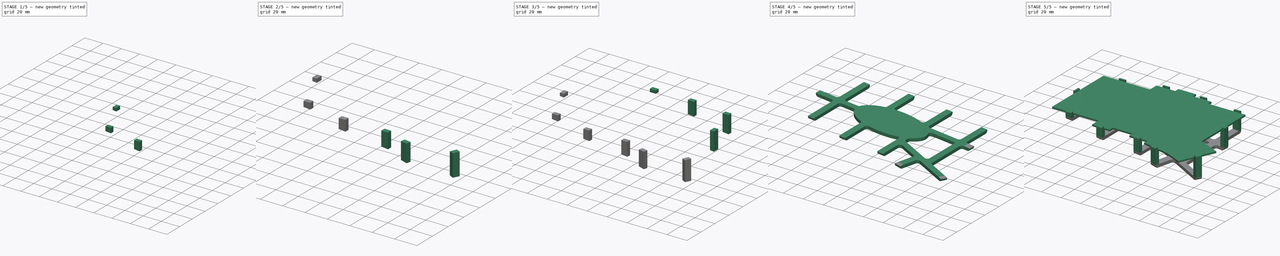
[diagram: build sequence overview — one tinted view per stage of 5, left to right]
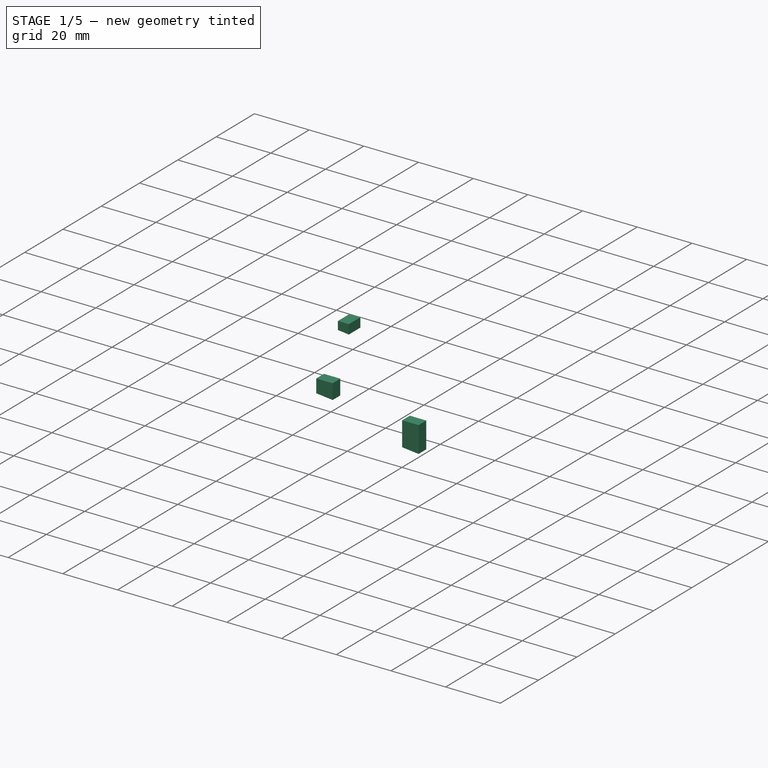
[diagram: stage 1 of 5 — iso view after this stage's code; geometry added in this stage tinted green]
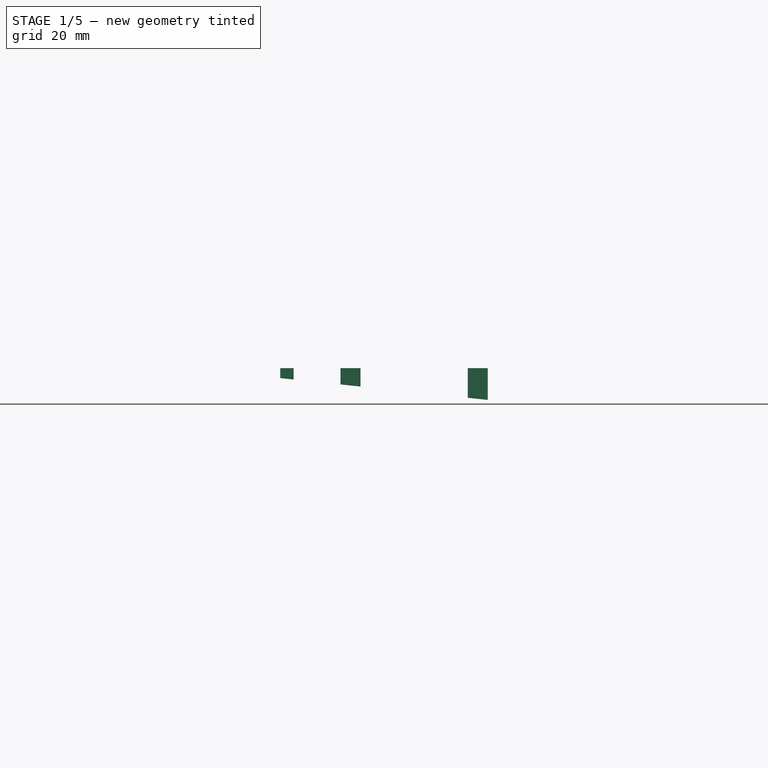
[diagram: stage 1 of 5 — front view after this stage's code; geometry added in this stage tinted green]
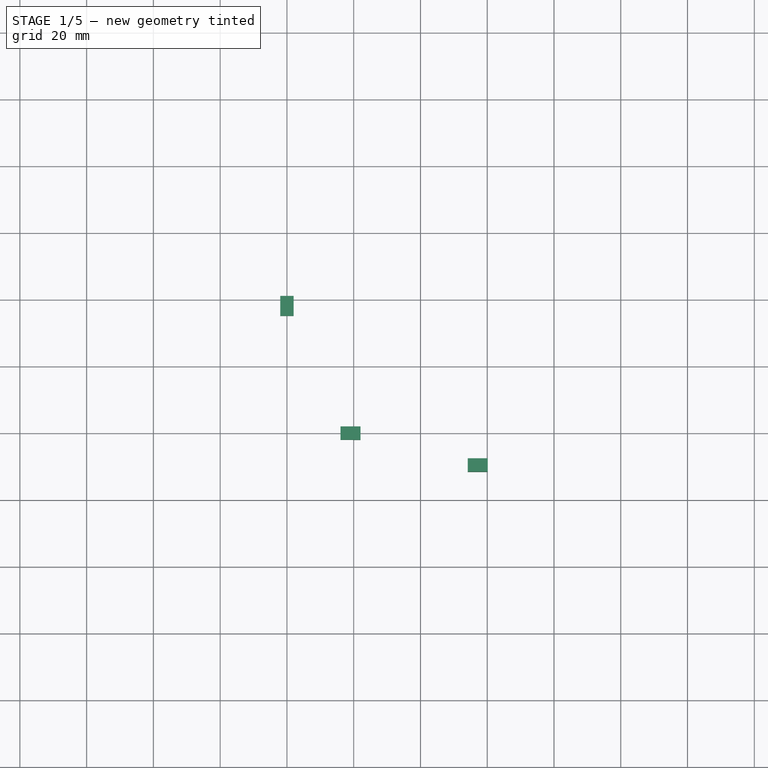
[diagram: stage 1 of 5 — top view after this stage's code; geometry added in this stage tinted green]
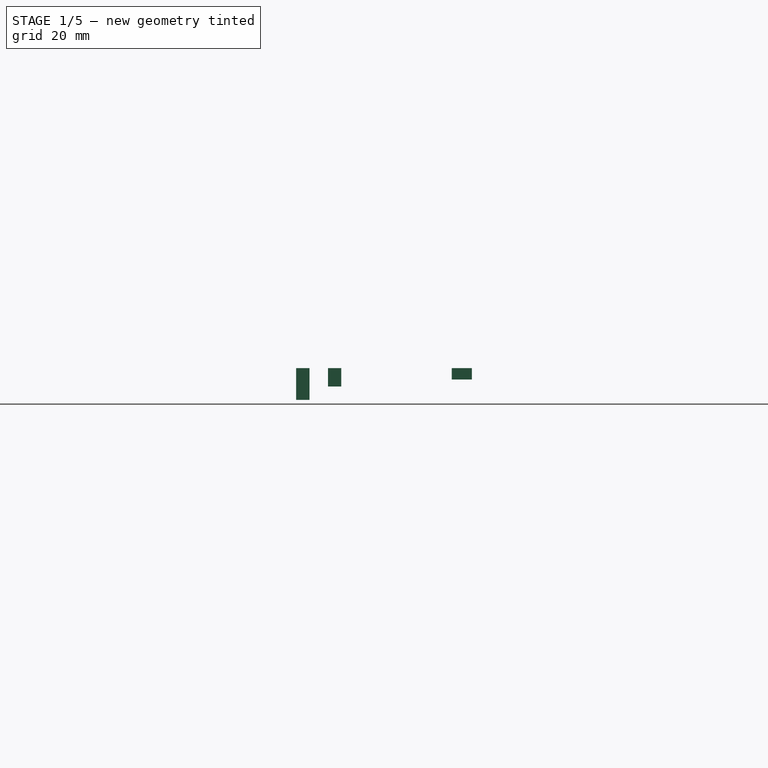
[diagram: stage 1 of 5 — right view after this stage's code; geometry added in this stage tinted green]
FCSTD DOCUMENT  (FreeCAD 0.19R24291 (Git))
Label: skeleton
License: All rights reserved
LicenseURL: http://en.wikipedia.org/wiki/All_rights_reserved
objects: Sketcher::SketchObject×16, PartDesign::Pad×15, PartDesign::Body×14, PartDesign::Draft×11, Spreadsheet::Sheet×1, Part::MultiFuse×1, PartDesign::ShapeBinder×1, PartDesign::Fillet×1, Part::Fillet×1, Part::Cut×1, PartDesign::Pocket×1
note: 90 computed .brp shape members not serialized (recipe doc carries the construction recipe); baked Part::Feature solids carry a one-line shape summary decoded from their .brp

FEATURE [PartDesign::Pad] Pad009
  Direction = (1,1,1)
  Length = 3
  Length2 = 100
  Profile = -> Sketch010
  Type = 0
  expr: Length = Spreadsheet.post_minheight
FEATURE [PartDesign::Pad] Pad010
  Direction = (1,1,1)
  Length = 3
  Length2 = 100
  Profile = -> Sketch011
  Type = 0
  expr: Length = Spreadsheet.post_minheight
FEATURE [PartDesign::Pad] Pad011
  Direction = (1,1,1)
  Length = 3
  Length2 = 100
  Profile = -> Sketch012
  Type = 0
  expr: Length = Spreadsheet.post_minheight
FEATURE [PartDesign::Body] Body008  label="post08"
  Group = -> [Sketch009,Pad008,Draft007]
  Origin = -> Origin008
  Tip = -> Draft007
FEATURE [PartDesign::Draft] Draft008
  Angle = 6
  Base = -> Pad009 [Face5]
  BaseFeature = -> Pad009
  NeutralPlane = -> Pad011 [Face4]
  SupportTransform = false
  expr: Angle = Spreadsheet.angle
FEATURE [PartDesign::Body] Body009  label="post09"
  Group = -> [Sketch010,Pad009,Draft008]
  Origin = -> Origin009
  Tip = -> Draft008
FEATURE [PartDesign::Draft] Draft009
  Angle = 6
  Base = -> Pad010 [Face5]
  BaseFeature = -> Pad010
  NeutralPlane = -> Pad011 [Face4]
  SupportTransform = false
  expr: Angle = Spreadsheet.angle
FEATURE [PartDesign::Body] Body010  label="post10"
  Group = -> [Sketch011,Pad010,Draft009]
  Origin = -> Origin010
  Tip = -> Draft009
FEATURE [PartDesign::Draft] Draft010
  Angle = 6
  Base = -> Pad011 [Face5]
  BaseFeature = -> Pad011
  NeutralPlane = -> Pad011 [Face4]
  SupportTransform = false
  expr: Angle = Spreadsheet.angle
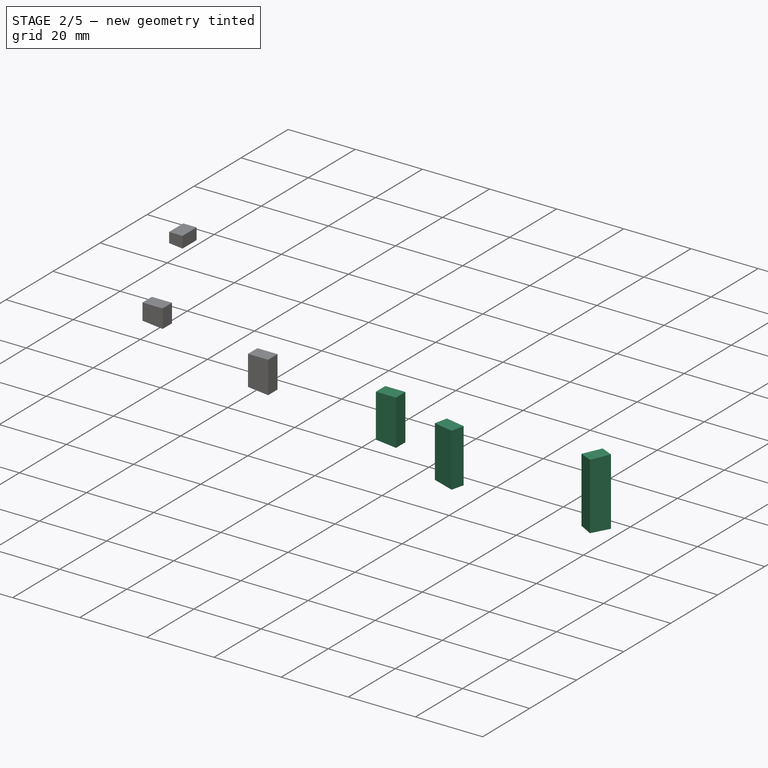
[diagram: stage 2 of 5 — iso view after this stage's code; geometry added in this stage tinted green]
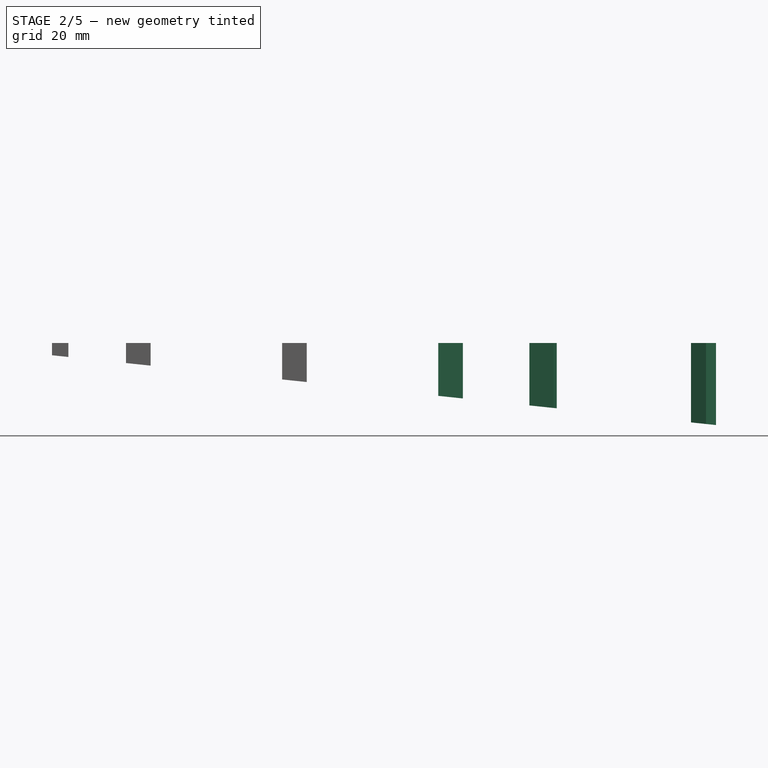
[diagram: stage 2 of 5 — front view after this stage's code; geometry added in this stage tinted green]
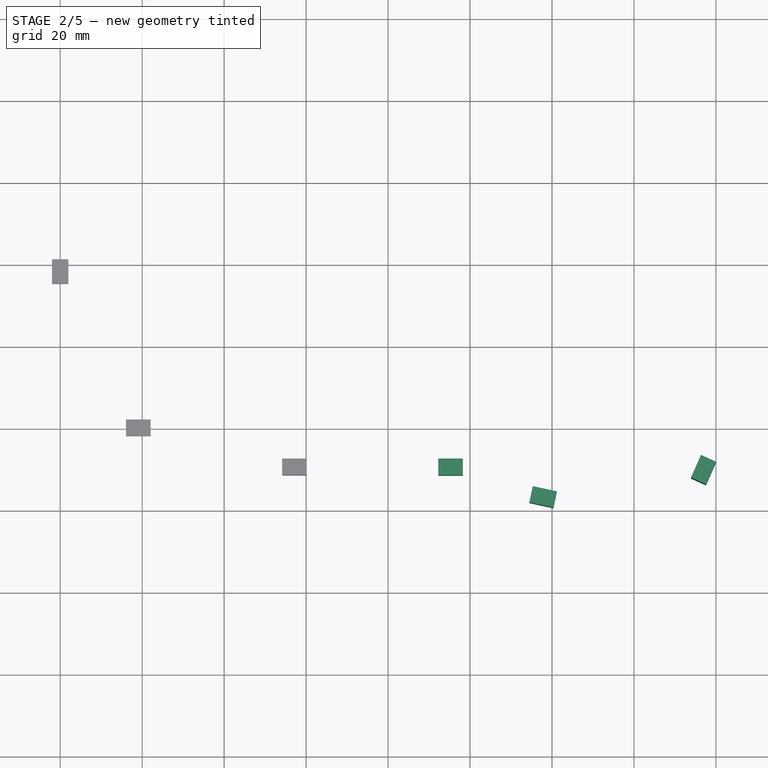
[diagram: stage 2 of 5 — top view after this stage's code; geometry added in this stage tinted green]
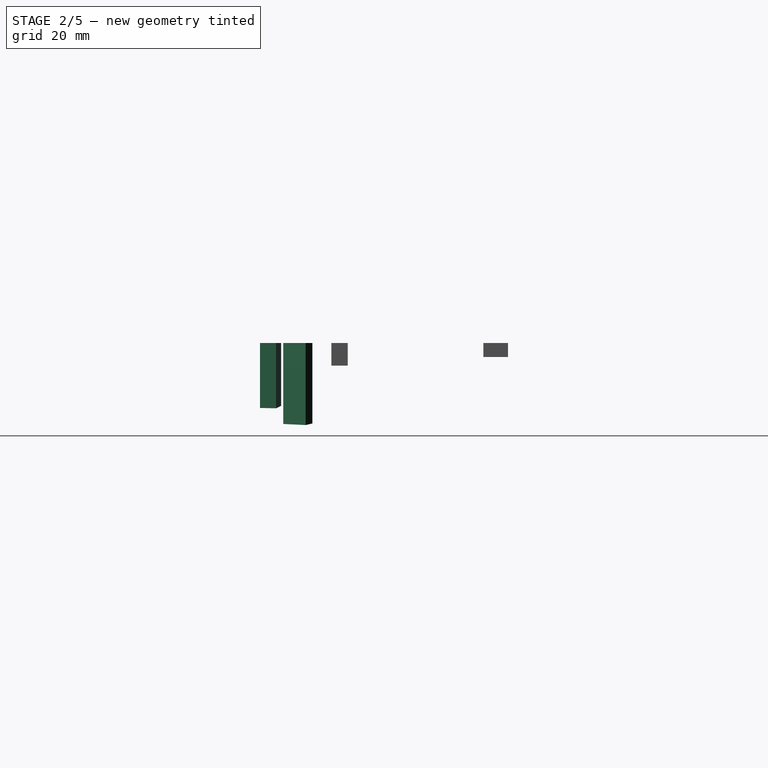
[diagram: stage 2 of 5 — right view after this stage's code; geometry added in this stage tinted green]
FEATURE [PartDesign::Pad] Pad006
  Direction = (1,1,1)
  Length = 3
  Length2 = 100
  Profile = -> Sketch007
  Type = 0
  expr: Length = Spreadsheet.post_minheight
FEATURE [PartDesign::Pad] Pad007
  Direction = (1,1,1)
  Length = 3
  Length2 = 100
  Profile = -> Sketch008
  Type = 0
  expr: Length = Spreadsheet.post_minheight
FEATURE [PartDesign::Pad] Pad008
  Direction = (1,1,1)
  Length = 3
  Length2 = 100
  Profile = -> Sketch009
  Type = 0
  expr: Length = Spreadsheet.post_minheight
FEATURE [PartDesign::Body] Body005  label="post05"
  Group = -> [Sketch006,Pad005,Draft004]
  Origin = -> Origin005
  Tip = -> Draft004
FEATURE [PartDesign::Draft] Draft005
  Angle = 6
  Base = -> Pad006 [Face5]
  BaseFeature = -> Pad006
  NeutralPlane = -> Pad011 [Face4]
  SupportTransform = false
  expr: Angle = Spreadsheet.angle
FEATURE [PartDesign::Body] Body006  label="post06"
  Group = -> [Sketch007,Pad006,Draft005]
  Origin = -> Origin006
  Tip = -> Draft005
FEATURE [PartDesign::Draft] Draft006
  Angle = 6
  Base = -> Pad007 [Face5]
  BaseFeature = -> Pad007
  NeutralPlane = -> Pad011 [Face4]
  SupportTransform = false
  expr: Angle = Spreadsheet.angle
FEATURE [PartDesign::Body] Body007  label="post07"
  Group = -> [Sketch008,Pad007,Draft006]
  Origin = -> Origin007
  Tip = -> Draft006
FEATURE [PartDesign::Draft] Draft007
  Angle = 6
  Base = -> Pad008 [Face5]
  BaseFeature = -> Pad008
  NeutralPlane = -> Pad011 [Face4]
  SupportTransform = false
  expr: Angle = Spreadsheet.angle
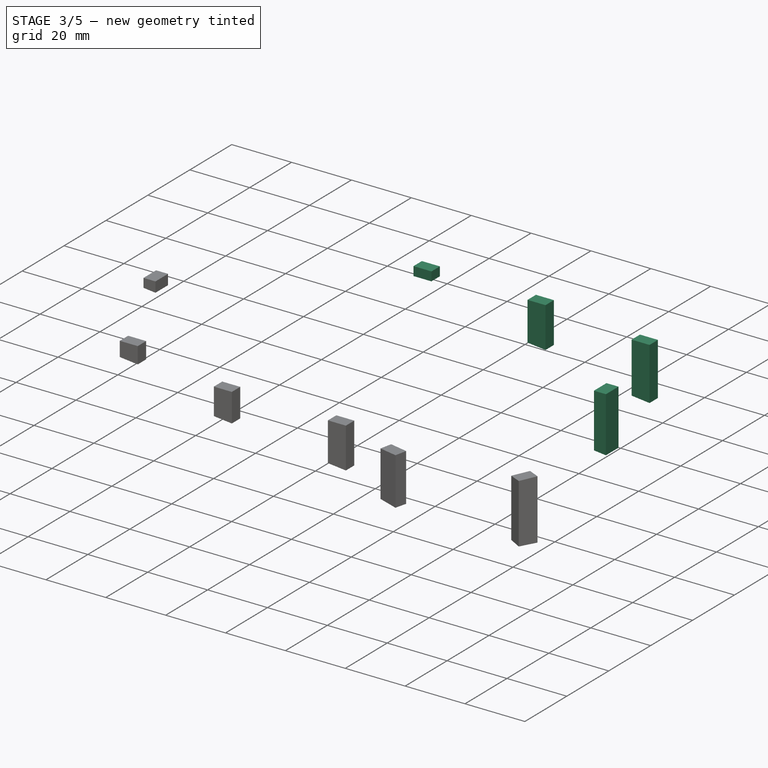
[diagram: stage 3 of 5 — iso view after this stage's code; geometry added in this stage tinted green]
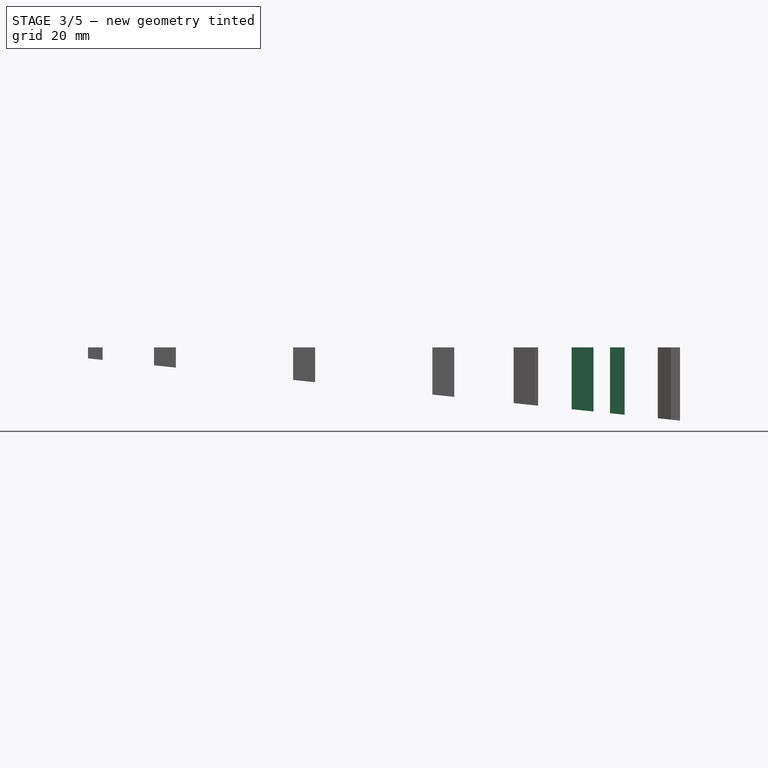
[diagram: stage 3 of 5 — front view after this stage's code; geometry added in this stage tinted green]
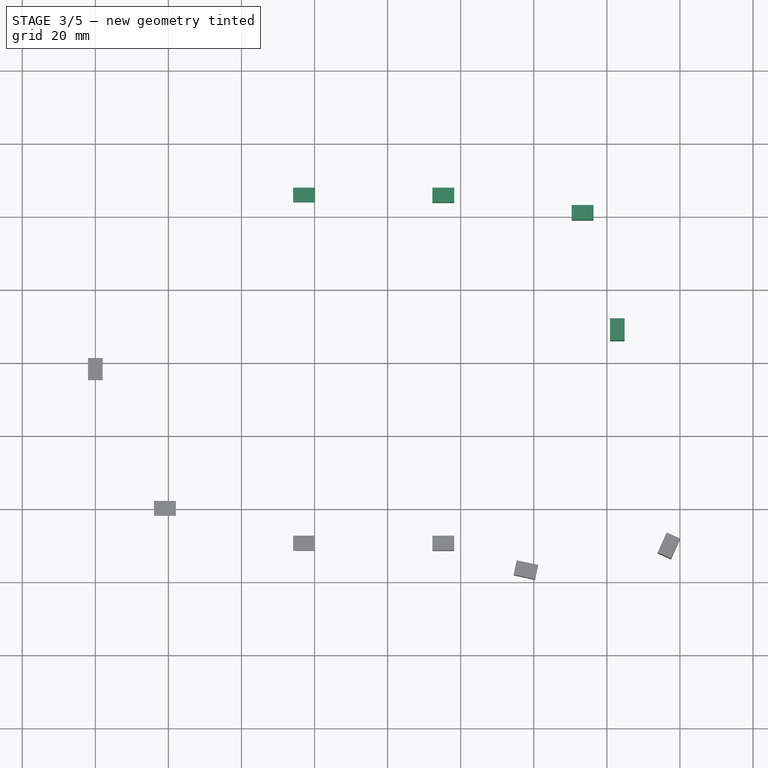
[diagram: stage 3 of 5 — top view after this stage's code; geometry added in this stage tinted green]
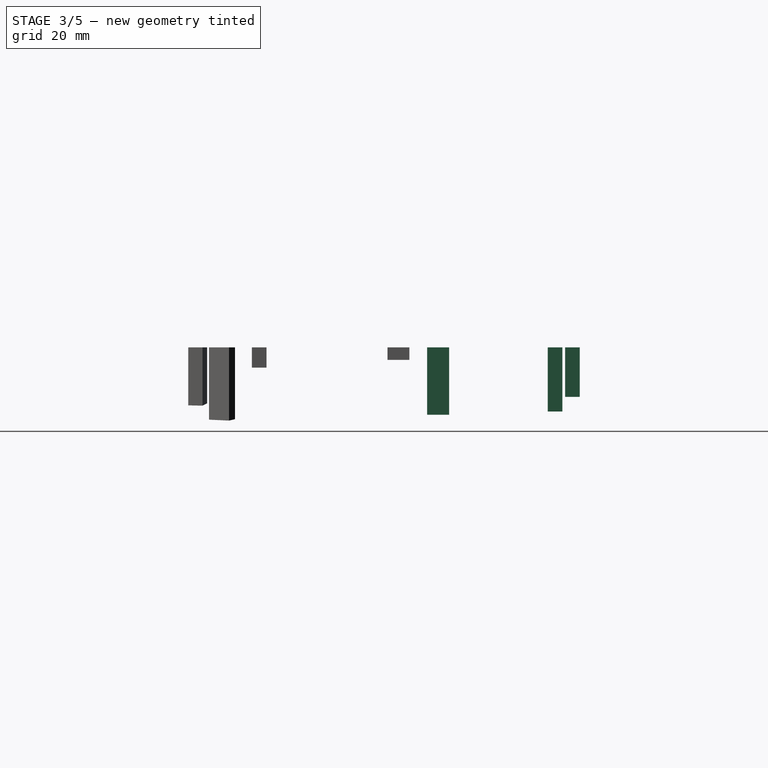
[diagram: stage 3 of 5 — right view after this stage's code; geometry added in this stage tinted green]
FEATURE [PartDesign::Pad] Pad002
  Direction = (1,1,1)
  Length = 3
  Length2 = 100
  Profile = -> Sketch003
  Type = 0
  expr: Length = Spreadsheet.post_minheight
FEATURE [PartDesign::Pad] Pad003
  Direction = (1,1,1)
  Length = 3
  Length2 = 100
  Profile = -> Sketch004
  Type = 0
  expr: Length = Spreadsheet.post_minheight
FEATURE [PartDesign::Pad] Pad004
  Direction = (1,1,1)
  Length = 3
  Length2 = 100
  Profile = -> Sketch005
  Type = 0
  expr: Length = Spreadsheet.post_minheight
FEATURE [PartDesign::Pad] Pad005
  Direction = (1,1,1)
  Length = 3
  Length2 = 100
  Profile = -> Sketch006
  Type = 0
  expr: Length = Spreadsheet.post_minheight
FEATURE [PartDesign::Body] Body002  label="post02"
  Group = -> [Sketch003,Pad002,Draft001]
  Origin = -> Origin002
  Tip = -> Draft001
FEATURE [PartDesign::Draft] Draft002
  Angle = 6
  Base = -> Pad003 [Face5]
  BaseFeature = -> Pad003
  NeutralPlane = -> Pad011 [Face4]
  SupportTransform = false
  expr: Angle = Spreadsheet.angle
FEATURE [PartDesign::Body] Body003  label="post03"
  Group = -> [Sketch004,Pad003,Draft002]
  Origin = -> Origin003
  Tip = -> Draft002
FEATURE [PartDesign::Draft] Draft003
  Angle = 6
  Base = -> Pad004 [Face5]
  BaseFeature = -> Pad004
  NeutralPlane = -> Pad011 [Face4]
  SupportTransform = false
  expr: Angle = Spreadsheet.angle
FEATURE [PartDesign::Body] Body004  label="post04"
  Group = -> [Sketch005,Pad004,Draft003]
  Origin = -> Origin004
  Tip = -> Draft003
FEATURE [PartDesign::Draft] Draft004
  Angle = 6
  Base = -> Pad005 [Face5]
  BaseFeature = -> Pad005
  NeutralPlane = -> Pad011 [Face4]
  SupportTransform = false
  expr: Angle = Spreadsheet.angle
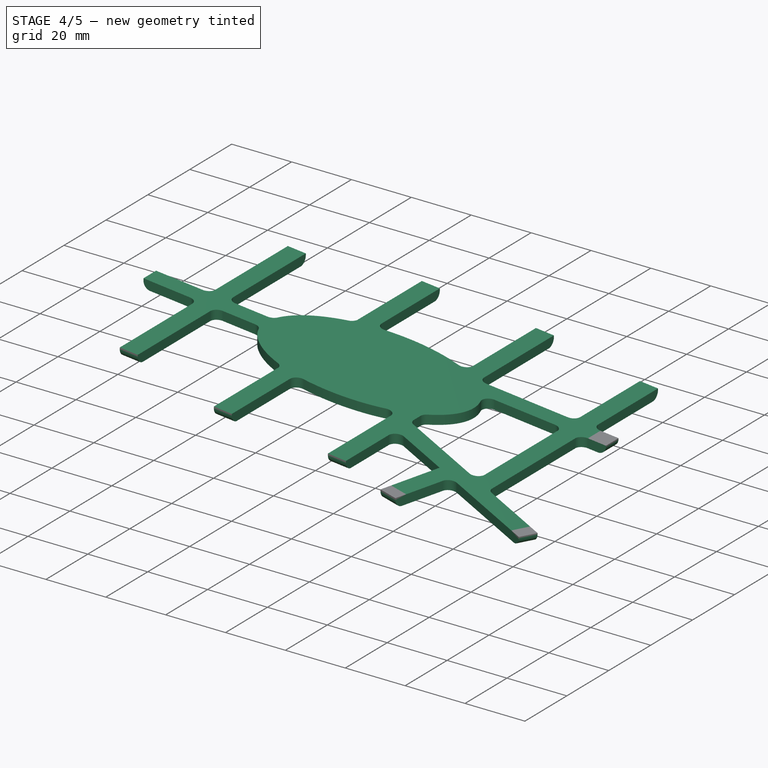
[diagram: stage 4 of 5 — iso view after this stage's code; geometry added in this stage tinted green]
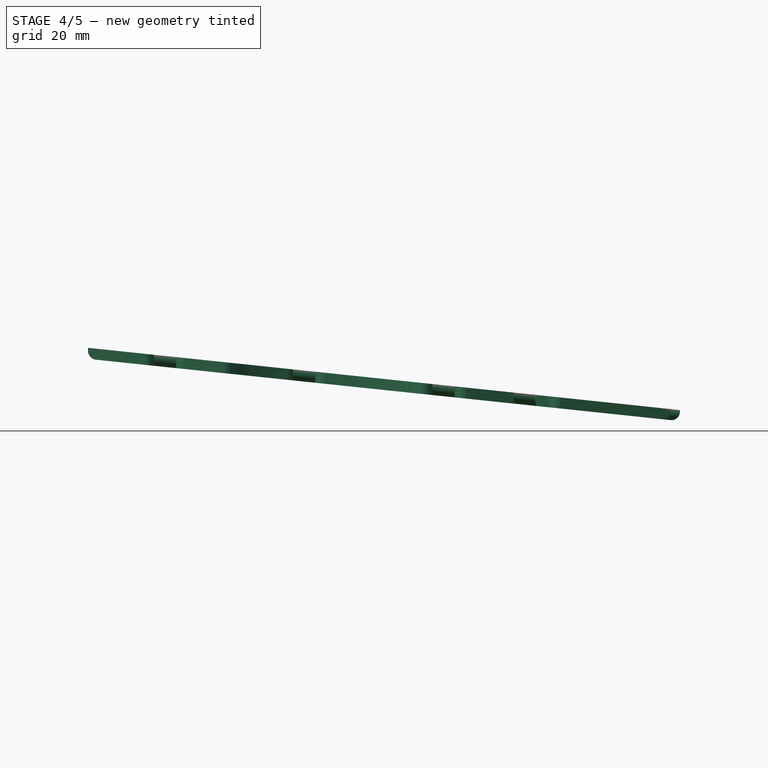
[diagram: stage 4 of 5 — front view after this stage's code; geometry added in this stage tinted green]
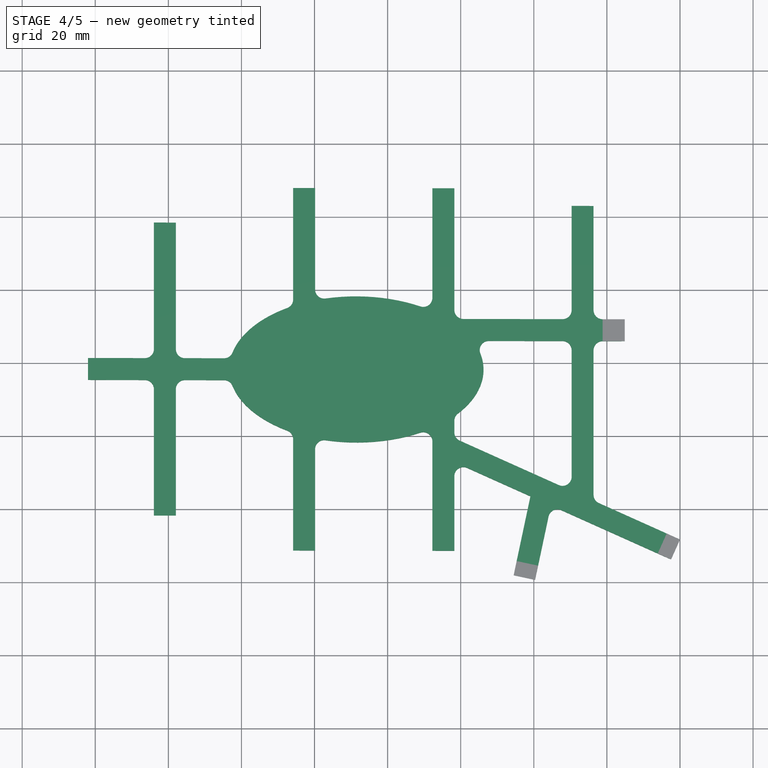
[diagram: stage 4 of 5 — top view after this stage's code; geometry added in this stage tinted green]
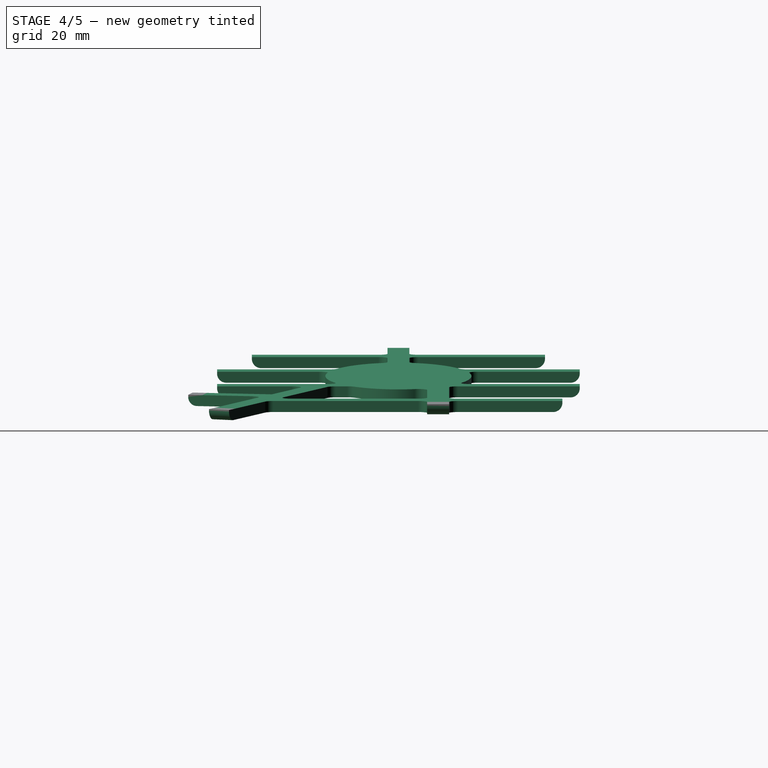
[diagram: stage 4 of 5 — right view after this stage's code; geometry added in this stage tinted green]
FEATURE [PartDesign::Body] Body  label="pcb"
  Group = -> [Sketch,Pad]
  Origin = -> Origin
  Tip = -> Pad
FEATURE [Sketcher::SketchObject] Sketch002  label="posts001"
  FullyConstrained = true
  MapMode = 5
  Support = -> [XY_Plane001]
  expr: Constraints[7] = Spreadsheet.grid * 2.5
  expr: Constraints[15] = Spreadsheet.post_width
  expr: Constraints[20] = Spreadsheet.post_thickness / 2
  expr: Constraints[19] = Spreadsheet.grid - Spreadsheet.post_width / 2
  expr: Constraints[18] = Spreadsheet.post_thickness
  expr: Constraints[8] = Spreadsheet.grid / 2
  expr: Constraints[6] = 4 * Spreadsheet.grid
  sketch-geometry (7):
    g0: LineSegment StartX=0 StartY=0 StartZ=0 EndX=0 EndY=76.2 EndZ=0
    g1: LineSegment StartX=0 StartY=76.2 StartZ=0 EndX=47.625 EndY=76.2 EndZ=0
    g2: LineSegment StartX=47.625 StartY=76.2 StartZ=0 EndX=47.625 EndY=85.725 EndZ=0
    g3: LineSegment StartX=22.05 StartY=74.2 StartZ=0 EndX=16.05 EndY=74.2 EndZ=0
    g4: LineSegment StartX=16.05 StartY=74.2 StartZ=0 EndX=16.05 EndY=78.2 EndZ=0
    g5: LineSegment StartX=16.05 StartY=78.2 StartZ=0 EndX=22.05 EndY=78.2 EndZ=0
    g6: LineSegment StartX=22.05 StartY=78.2 StartZ=0 EndX=22.05 EndY=74.2 EndZ=0
  constraints (21):
    c: Coincident(g0,g-1)
    c: PointOnObject(g0,g-2)
    c: Coincident(g0,g1)
    c: Horizontal(g1)
    c: Coincident(g1,g2)
    c: Vertical(g2)
    c: Distance(g0) = 76.2
    c: Distance(g1) = 47.625
    c: Distance(g2) = 9.525
    c: Coincident(g3,g4)
    c: Coincident(g4,g5)
    c: Coincident(g5,g6)
    c: Coincident(g6,g3)
    c: Horizontal(g3)
    c: Vertical(g4)
    c: Distance(g3) = 6
    c: Vertical(g6)
    c: Horizontal(g5)
    c: Distance(g6) = 4
    c: DistanceX(g0,g4) = 16.05
    c: DistanceY(g3,g0) = 2
FEATURE [Sketcher::SketchObject] Sketch003  label="posts002"
  FullyConstrained = true
  MapMode = 5
  Support = -> [XY_Plane002]
  expr: Constraints[29] = Spreadsheet.post_thickness
  expr: Constraints[26] = Spreadsheet.post_thickness / 2
  expr: Constraints[27] = Spreadsheet.grid / 2 - Spreadsheet.post_width / 2
  expr: Constraints[14] = Spreadsheet.grid / 2
  expr: Constraints[15] = Spreadsheet.grid
  expr: Constraints[28] = Spreadsheet.post_width
  expr: Constraints[12] = 4 * Spreadsheet.grid
  expr: Constraints[16] = Spreadsheet.grid / 4
  expr: Constraints[13] = Spreadsheet.grid * 2.5
  sketch-geometry (10):
    g0: LineSegment StartX=0 StartY=0 StartZ=0 EndX=0 EndY=76.2 EndZ=0
    g1: LineSegment StartX=0 StartY=76.2 StartZ=0 EndX=47.625 EndY=76.2 EndZ=0
    g2: LineSegment StartX=47.625 StartY=76.2 StartZ=0 EndX=47.625 EndY=85.725 EndZ=0
    g3: LineSegment StartX=47.625 StartY=85.725 StartZ=0 EndX=66.675 EndY=85.725 EndZ=0
    g4: LineSegment StartX=66.675 StartY=85.725 StartZ=0 EndX=66.675 EndY=90.4875 EndZ=0
    g5: LineSegment StartX=47.625 StartY=0 StartZ=0 EndX=0 EndY=0 EndZ=0
    g6: LineSegment StartX=60.15 StartY=83.725 StartZ=0 EndX=54.15 EndY=83.725 EndZ=0
    g7: LineSegment StartX=54.15 StartY=83.725 StartZ=0 EndX=54.15 EndY=87.725 EndZ=0
    g8: LineSegment StartX=54.15 StartY=87.725 StartZ=0 EndX=60.15 EndY=87.725 EndZ=0
    g9: LineSegment StartX=60.15 StartY=87.725 StartZ=0 EndX=60.15 EndY=83.725 EndZ=0
  constraints (30):
    c: Coincident(g0,g-1)
    c: PointOnObject(g0,g-2)
    c: Coincident(g0,g1)
    c: Horizontal(g1)
    c: Coincident(g1,g2)
    c: Vertical(g2)
    c: Coincident(g2,g3)
    c: Horizontal(g3)
    c: Coincident(g3,g4)
    c: Vertical(g4)
    c: Coincident(g5,g-1)
    c: Horizontal(g5)
    c: Distance(g0) = 76.2
    c: Distance(g1) = 47.625
    c: Distance(g2) = 9.525
    c: Distance(g3) = 19.05
    c: Distance(g4) = 4.7625
    c: Equal(g1,g5)
    c: Coincident(g6,g7)
    c: Coincident(g7,g8)
    c: Coincident(g8,g9)
    c: Coincident(g9,g6)
    c: Horizontal(g6)
    c: Vertical(g7)
    c: Vertical(g9)
    c: Horizontal(g8)
    c: DistanceY(g2,g7) = 2
    c: DistanceX(g2,g7) = 6.525
    c: Distance(g6) = 6
    c: Distance(g7) = 4
FEATURE [Sketcher::SketchObject] Sketch004  label="posts003"
  FullyConstrained = true
  MapMode = 5
  Support = -> [XY_Plane003]
  expr: Constraints[40] = Spreadsheet.post_width
  expr: Constraints[39] = Spreadsheet.post_thickness
  expr: Constraints[16] = Spreadsheet.grid / 2
  expr: Constraints[38] = Spreadsheet.grid / 2 - Spreadsheet.post_width / 2
  expr: Constraints[26] = Spreadsheet.grid / 4
  expr: Constraints[15] = Spreadsheet.grid * 2.5
  expr: Constraints[17] = Spreadsheet.grid
  expr: Constraints[41] = Spreadsheet.post_thickness / 2
  expr: Constraints[14] = 4 * Spreadsheet.grid
  sketch-geometry (14):
    g0: LineSegment StartX=0 StartY=0 StartZ=0 EndX=0 EndY=76.2 EndZ=0
    g1: LineSegment StartX=0 StartY=76.2 StartZ=0 EndX=47.625 EndY=76.2 EndZ=0
    g2: LineSegment StartX=47.625 StartY=76.2 StartZ=0 EndX=47.625 EndY=85.725 EndZ=0
    g3: LineSegment StartX=47.625 StartY=85.725 StartZ=0 EndX=66.675 EndY=85.725 EndZ=0
    g4: LineSegment StartX=66.675 StartY=85.725 StartZ=0 EndX=66.675 EndY=90.4875 EndZ=0
    g5: LineSegment StartX=66.675 StartY=90.4875 StartZ=0 EndX=85.725 EndY=90.4875 EndZ=0
    g6: LineSegment StartX=85.725 StartY=85.725 StartZ=0 EndX=104.775 EndY=85.725 EndZ=0
    g7: LineSegment StartX=104.775 StartY=80.9625 StartZ=0 EndX=152.4 EndY=80.9625 EndZ=0
    g8: LineSegment StartX=85.725 StartY=90.4875 StartZ=0 EndX=85.725 EndY=85.725 EndZ=0
    g9: LineSegment StartX=104.775 StartY=85.725 StartZ=0 EndX=104.775 EndY=80.9625 EndZ=0
    g10: LineSegment StartX=98.25 StartY=83.725 StartZ=0 EndX=92.25 EndY=83.725 EndZ=0
    g11: LineSegment StartX=92.25 StartY=83.725 StartZ=0 EndX=92.25 EndY=87.725 EndZ=0
    g12: LineSegment StartX=92.25 StartY=87.725 StartZ=0 EndX=98.25 EndY=87.725 EndZ=0
    g13: LineSegment StartX=98.25 StartY=87.725 StartZ=0 EndX=98.25 EndY=83.725 EndZ=0
  constraints (42):
    c: Coincident(g0,g-1)
    c: PointOnObject(g0,g-2)
    c: Coincident(g0,g1)
    c: Horizontal(g1)
    c: Coincident(g1,g2)
    c: Vertical(g2)
    c: Coincident(g2,g3)
    c: Horizontal(g3)
    c: Coincident(g3,g4)
    c: Vertical(g4)
    c: Coincident(g4,g5)
    c: Horizontal(g5)
    c: Horizontal(g6)
    c: Horizontal(g7)
    c: Distance(g0) = 76.2
    c: Distance(g1) = 47.625
    c: Distance(g2) = 9.525
    c: Distance(g3) = 19.05
    c: Equal(g3,g5)
    c: Equal(g5,g6)
    c: Coincident(g8,g5)
    c: Coincident(g8,g6)
    c: Vertical(g8)
    c: Coincident(g9,g6)
    c: Coincident(g9,g7)
    c: Vertical(g9)
    c: Distance(g4) = 4.7625
    c: Equal(g4,g8)
    c: Equal(g9,g4)
    c: Equal(g7,g1)
    c: Coincident(g10,g11)
    c: Coincident(g11,g12)
    c: Coincident(g12,g13)
    c: Coincident(g13,g10)
    c: Horizontal(g10)
    c: Vertical(g11)
    c: Vertical(g13)
    c: Horizontal(g12)
    c: DistanceX(g6,g11) = 6.525
    c: Distance(g11) = 4
    c: Distance(g12) = 6
    c: DistanceY(g10,g6) = 2
FEATURE [Sketcher::SketchObject] Sketch005  label="posts004"
  FullyConstrained = true
  MapMode = 5
  Support = -> [XY_Plane004]
  expr: Constraints[16] = 4 * Spreadsheet.grid
  expr: Constraints[44] = Spreadsheet.grid * 2
  expr: Constraints[42] = Spreadsheet.post_width
  expr: Constraints[43] = Spreadsheet.post_thickness
  expr: Constraints[18] = Spreadsheet.grid / 2
  expr: Constraints[19] = Spreadsheet.grid
  expr: Constraints[28] = Spreadsheet.grid / 4
  expr: Constraints[40] = Spreadsheet.post_thickness / 2
  expr: Constraints[17] = Spreadsheet.grid * 2.5
  expr: Constraints[41] = Spreadsheet.grid / 2 - Spreadsheet.post_width / 2
  sketch-geometry (15):
    g0: LineSegment StartX=0 StartY=0 StartZ=0 EndX=0 EndY=76.2 EndZ=0
    g1: LineSegment StartX=0 StartY=76.2 StartZ=0 EndX=47.625 EndY=76.2 EndZ=0
    g2: LineSegment StartX=47.625 StartY=76.2 StartZ=0 EndX=47.625 EndY=85.725 EndZ=0
    g3: LineSegment StartX=47.625 StartY=85.725 StartZ=0 EndX=66.675 EndY=85.725 EndZ=0
    g4: LineSegment StartX=66.675 StartY=85.725 StartZ=0 EndX=66.675 EndY=90.4875 EndZ=0
    g5: LineSegment StartX=66.675 StartY=90.4875 StartZ=0 EndX=85.725 EndY=90.4875 EndZ=0
    g6: LineSegment StartX=85.725 StartY=85.725 StartZ=0 EndX=104.775 EndY=85.725 EndZ=0
    g7: LineSegment StartX=104.775 StartY=80.9625 StartZ=0 EndX=142.875 EndY=80.9625 EndZ=0
    g8: LineSegment StartX=47.625 StartY=0 StartZ=0 EndX=0 EndY=0 EndZ=0
    g9: LineSegment StartX=85.725 StartY=90.4875 StartZ=0 EndX=85.725 EndY=85.725 EndZ=0
    g10: LineSegment StartX=104.775 StartY=85.725 StartZ=0 EndX=104.775 EndY=80.9625 EndZ=0
    g11: LineSegment StartX=136.35 StartY=78.9625 StartZ=0 EndX=130.35 EndY=78.9625 EndZ=0
    g12: LineSegment StartX=130.35 StartY=78.9625 StartZ=0 EndX=130.35 EndY=82.9625 EndZ=0
    g13: LineSegment StartX=130.35 StartY=82.9625 StartZ=0 EndX=136.35 EndY=82.9625 EndZ=0
    g14: LineSegment StartX=136.35 StartY=82.9625 StartZ=0 EndX=136.35 EndY=78.9625 EndZ=0
  constraints (45):
    c: Coincident(g0,g-1)
    c: PointOnObject(g0,g-2)
    c: Coincident(g0,g1)
    c: Horizontal(g1)
    c: Coincident(g1,g2)
    c: Vertical(g2)
    c: Coincident(g2,g3)
    c: Horizontal(g3)
    c: Coincident(g3,g4)
    c: Vertical(g4)
    c: Coincident(g4,g5)
    c: Horizontal(g5)
    c: Horizontal(g6)
    c: Horizontal(g7)
    c: Coincident(g8,g-1)
    c: Horizontal(g8)
    c: Distance(g0) = 76.2
    c: Distance(g1) = 47.625
    c: Distance(g2) = 9.525
    c: Distance(g3) = 19.05
    c: Equal(g3,g5)
    c: Equal(g5,g6)
    c: Coincident(g9,g5)
    c: Coincident(g9,g6)
    c: Vertical(g9)
    c: Coincident(g10,g6)
    c: Coincident(g10,g7)
    c: Vertical(g10)
    c: Distance(g4) = 4.7625
    c: Equal(g4,g9)
    c: Equal(g10,g4)
    c: Equal(g1,g8)
    c: Coincident(g11,g12)
    c: Coincident(g12,g13)
    c: Coincident(g13,g14)
    c: Coincident(g14,g11)
    c: Horizontal(g11)
    c: Vertical(g12)
    c: Vertical(g14)
    c: Horizontal(g13)
    c: DistanceY(g7,g13) = 2
    c: DistanceX(g13,g7) = 6.525
    c: DistanceX(g11,g11) = 6
    c: DistanceY(g12,g12) = 4
    c: DistanceX(g7,g7) = 38.1
FEATURE [Sketcher::SketchObject] Sketch006  label="posts005"
  FullyConstrained = true
  MapMode = 5
  Support = -> [XY_Plane005]
  expr: Constraints[39] = Spreadsheet.post_thickness
  expr: Constraints[40] = Spreadsheet.post_width
  expr: Constraints[17] = Spreadsheet.grid
  expr: Constraints[14] = 4 * Spreadsheet.grid
  expr: Constraints[41] = Spreadsheet.grid * 2
  expr: Constraints[15] = Spreadsheet.grid * 2.5
  expr: Constraints[16] = Spreadsheet.grid / 2
  expr: Constraints[37] = Spreadsheet.post_thickness / 2
  expr: Constraints[38] = 63.99 / 2 - Spreadsheet.post_width / 2
  expr: Constraints[26] = Spreadsheet.grid / 4
  sketch-geometry (14):
    g0: LineSegment StartX=0 StartY=0 StartZ=0 EndX=0 EndY=76.2 EndZ=0
    g1: LineSegment StartX=0 StartY=76.2 StartZ=0 EndX=47.625 EndY=76.2 EndZ=0
    g2: LineSegment StartX=47.625 StartY=76.2 StartZ=0 EndX=47.625 EndY=85.725 EndZ=0
    g3: LineSegment StartX=47.625 StartY=85.725 StartZ=0 EndX=66.675 EndY=85.725 EndZ=0
    g4: LineSegment StartX=66.675 StartY=85.725 StartZ=0 EndX=66.675 EndY=90.4875 EndZ=0
    g5: LineSegment StartX=66.675 StartY=90.4875 StartZ=0 EndX=85.725 EndY=90.4875 EndZ=0
    g6: LineSegment StartX=85.725 StartY=85.725 StartZ=0 EndX=104.775 EndY=85.725 EndZ=0
    g7: LineSegment StartX=104.775 StartY=80.9625 StartZ=0 EndX=142.875 EndY=80.9625 EndZ=0
    g8: LineSegment StartX=85.725 StartY=90.4875 StartZ=0 EndX=85.725 EndY=85.725 EndZ=0
    g9: LineSegment StartX=104.775 StartY=85.725 StartZ=0 EndX=104.775 EndY=80.9625 EndZ=0
    g10: LineSegment StartX=140.875 StartY=51.9675 StartZ=0 EndX=144.875 EndY=51.9675 EndZ=0
    g11: LineSegment StartX=144.875 StartY=51.9675 StartZ=0 EndX=144.875 EndY=45.9675 EndZ=0
    g12: LineSegment StartX=144.875 StartY=45.9675 StartZ=0 EndX=140.875 EndY=45.9675 EndZ=0
    g13: LineSegment StartX=140.875 StartY=45.9675 StartZ=0 EndX=140.875 EndY=51.9675 EndZ=0
  constraints (42):
    c: Coincident(g0,g-1)
    c: PointOnObject(g0,g-2)
    c: Coincident(g0,g1)
    c: Horizontal(g1)
    c: Coincident(g1,g2)
    c: Vertical(g2)
    c: Coincident(g2,g3)
    c: Horizontal(g3)
    c: Coincident(g3,g4)
    c: Vertical(g4)
    c: Coincident(g4,g5)
    c: Horizontal(g5)
    c: Horizontal(g6)
    c: Horizontal(g7)
    c: Distance(g0) = 76.2
    c: Distance(g1) = 47.625
    c: Distance(g2) = 9.525
    c: Distance(g3) = 19.05
    c: Equal(g3,g5)
    c: Equal(g5,g6)
    c: Coincident(g8,g5)
    c: Coincident(g8,g6)
    c: Vertical(g8)
    c: Coincident(g9,g6)
    c: Coincident(g9,g7)
    c: Vertical(g9)
    c: Distance(g4) = 4.7625
    c: Equal(g4,g8)
    c: Equal(g9,g4)
    c: Coincident(g10,g11)
    c: Coincident(g11,g12)
    c: Coincident(g12,g13)
    c: Coincident(g13,g10)
    c: Horizontal(g10)
    c: Horizontal(g12)
    c: Vertical(g11)
    c: Vertical(g13)
    c: DistanceX(g10,g7) = 2
    c: DistanceY(g10,g7) = 28.995
    c: DistanceX(g12,g12) = 4
    c: DistanceY(g11,g11) = 6
    c: DistanceX(g7,g7) = 38.1
FEATURE [Sketcher::SketchObject] Sketch007  label="posts006"
  FullyConstrained = true
  MapMode = 5
  Support = -> [XY_Plane006]
  expr: Constraints[37] = Spreadsheet.grid
  expr: Constraints[35] = Spreadsheet.grid * 2.5
  expr: Constraints[78] = Spreadsheet.post_thickness
  expr: Constraints[62] = Spreadsheet.grid / 4
  expr: Constraints[77] = Spreadsheet.post_width
  expr: Constraints[76] = Spreadsheet.grid - Spreadsheet.post_width / 2
  expr: Constraints[51] = 180 - 12.08569093596732
  expr: Constraints[36] = Spreadsheet.grid / 2
  expr: Constraints[34] = 4 * Spreadsheet.grid
  expr: Constraints[46] = Spreadsheet.grid * 1.5
  expr: Constraints[75] = Spreadsheet.post_thickness / 2
  expr: Constraints[55] = Spreadsheet.grid - 14.60669124913411
  expr: Constraints[79] = Spreadsheet.grid * 2
  sketch-geometry (27):
    g0: LineSegment StartX=0 StartY=0 StartZ=0 EndX=0 EndY=76.2 EndZ=0
    g1: LineSegment StartX=0 StartY=76.2 StartZ=0 EndX=47.625 EndY=76.2 EndZ=0
    g2: LineSegment StartX=47.625 StartY=76.2 StartZ=0 EndX=47.625 EndY=85.725 EndZ=0
    g3: LineSegment StartX=47.625 StartY=85.725 StartZ=0 EndX=66.675 EndY=85.725 EndZ=0
    g4: LineSegment StartX=66.675 StartY=85.725 StartZ=0 EndX=66.675 EndY=90.4875 EndZ=0
    g5: LineSegment StartX=66.675 StartY=90.4875 StartZ=0 EndX=85.725 EndY=90.4875 EndZ=0
    g6: LineSegment StartX=85.725 StartY=85.725 StartZ=0 EndX=104.775 EndY=85.725 EndZ=0
    g7: LineSegment StartX=104.775 StartY=80.9625 StartZ=0 EndX=142.875 EndY=80.9625 EndZ=0
    g8: LineSegment StartX=142.875 StartY=80.9625 StartZ=0 EndX=142.875 EndY=16.9712 EndZ=0
    g9: LineSegment StartX=164.742 StartY=7.19623 StartZ=0 EndX=149.193 EndY=-27.5866 EndZ=0
    g10: LineSegment StartX=149.193 StartY=-27.5866 StartZ=0 EndX=131.802 EndY=-19.8123 EndZ=0
    g11: LineSegment StartX=131.802 StartY=-19.8123 StartZ=0 EndX=103.851 EndY=-13.8712 EndZ=0
    g12: LineSegment StartX=103.851 StartY=-13.8712 StartZ=0 EndX=104.775 EndY=-9.525 EndZ=0
    g13: LineSegment StartX=104.775 StartY=-9.525 StartZ=0 EndX=85.725 EndY=-9.525 EndZ=0
    g14: LineSegment StartX=85.725 StartY=-9.525 StartZ=0 EndX=85.725 EndY=-4.7625 EndZ=0
    g15: LineSegment StartX=85.725 StartY=-4.7625 StartZ=0 EndX=66.675 EndY=-4.7625 EndZ=0
    g16: LineSegment StartX=66.675 StartY=-4.7625 StartZ=0 EndX=66.675 EndY=-9.525 EndZ=0
    g17: LineSegment StartX=66.675 StartY=-9.525 StartZ=0 EndX=47.625 EndY=-9.525 EndZ=0
    g18: LineSegment StartX=47.625 StartY=-9.525 StartZ=0 EndX=47.625 EndY=0 EndZ=0
    g19: LineSegment StartX=47.625 StartY=0 StartZ=0 EndX=0 EndY=0 EndZ=0
    g20: LineSegment StartX=164.742 StartY=7.19623 StartZ=0 EndX=142.875 EndY=16.9712 EndZ=0
    g21: LineSegment StartX=85.725 StartY=90.4875 StartZ=0 EndX=85.725 EndY=85.725 EndZ=0
    g22: LineSegment StartX=104.775 StartY=85.725 StartZ=0 EndX=104.775 EndY=80.9625 EndZ=0
    g23: LineSegment StartX=156.366 StartY=-6.64019 StartZ=0 EndX=160.018 EndY=-8.2726 EndZ=0
    g24: LineSegment StartX=160.018 StartY=-8.2726 StartZ=0 EndX=157.569 EndY=-13.7502 EndZ=0
    g25: LineSegment StartX=157.569 StartY=-13.7502 StartZ=0 EndX=153.917 EndY=-12.1178 EndZ=0
    g26: LineSegment StartX=153.917 StartY=-12.1178 StartZ=0 EndX=156.366 EndY=-6.64019 EndZ=0
  constraints (80):
    c: Coincident(g0,g-1)
    c: PointOnObject(g0,g-2)
    c: Coincident(g0,g1)
    c: Horizontal(g1)
    c: Coincident(g1,g2)
    c: Vertical(g2)
    c: Coincident(g2,g3)
    c: Horizontal(g3)
    c: Coincident(g3,g4)
    c: Vertical(g4)
    c: Coincident(g4,g5)
    c: Horizontal(g5)
    c: Horizontal(g6)
    c: Horizontal(g7)
    c: Coincident(g7,g8)
    c: Vertical(g8)
    c: Coincident(g9,g10)
    c: Coincident(g10,g11)
    c: Coincident(g11,g12)
    c: Coincident(g12,g13)
    c: Horizontal(g13)
    c: Coincident(g13,g14)
    c: Vertical(g14)
    c: Coincident(g14,g15)
    c: Horizontal(g15)
    c: Coincident(g15,g16)
    c: Vertical(g16)
    c: Coincident(g16,g17)
    c: Horizontal(g17)
    c: Coincident(g17,g18)
    c: Vertical(g18)
    c: Coincident(g18,g19)
    c: Coincident(g19,g-1)
    c: Horizontal(g19)
    c: Distance(g0) = 76.2
    c: Distance(g1) = 47.625
    c: Distance(g2) = 9.525
    c: Distance(g3) = 19.05
    c: Equal(g14,g16)
    c: Equal(g3,g5)
    c: Equal(g5,g6)
    c: Equal(g6,g10)
    c: Equal(g10,g13)
    c: Equal(g13,g15)
    c: Equal(g15,g17)
    c: Equal(g9,g7)
    c: Distance(g11) = 28.575
    c: Perpendicular(g10,g9)
    c: Equal(g18,g2)
    c: Angle(g13,g12) = 1.36136
    c: Perpendicular(g12,g11)
    c: Angle(g11,g10) = 2.93066
    c: Coincident(g20,g9)
    c: Coincident(g20,g8)
    c: Perpendicular(g9,g20)
    c: Distance(g12) = 4.44331
    c: Coincident(g21,g5)
    c: Coincident(g21,g6)
    c: Vertical(g21)
    c: Coincident(g22,g6)
    c: Coincident(g22,g7)
    c: Vertical(g22)
    c: Distance(g4) = 4.7625
    c: Equal(g4,g21)
    c: Equal(g22,g4)
    c: Equal(g14,g22)
    c: Equal(g1,g19)
    c: Coincident(g23,g24)
    c: Coincident(g24,g25)
    c: Coincident(g25,g26)
    c: Coincident(g26,g23)
    c: Parallel(g24,g26)
    c: Parallel(g26,g9)
    c: Equal(g24,g26)
    c: Perpendicular(g25,g24)
    c: Distance(g23,g9) = 2
    c: Distance(g9,g23) = 16.05
    c: Distance(g24) = 6
    c: Distance(g25) = 4
    c: DistanceX(g7,g7) = 38.1
FEATURE [Sketcher::SketchObject] Sketch008  label="posts007"
  FullyConstrained = true
  MapMode = 5
  Support = -> [XY_Plane007]
  expr: Constraints[79] = Spreadsheet.post_width
  expr: Constraints[78] = Spreadsheet.post_thickness
  expr: Constraints[55] = Spreadsheet.grid - 14.60669124913411
  expr: Constraints[34] = 4 * Spreadsheet.grid
  expr: Constraints[36] = Spreadsheet.grid / 2
  expr: Constraints[37] = Spreadsheet.grid
  expr: Constraints[35] = Spreadsheet.grid * 2.5
  expr: Constraints[77] = Spreadsheet.grid * 0.75 - Spreadsheet.post_width / 2
  expr: Constraints[62] = Spreadsheet.grid / 4
  expr: Constraints[76] = Spreadsheet.post_thickness / 2
  expr: Constraints[51] = 180 - 12.08569093596732
  expr: Constraints[46] = Spreadsheet.grid * 1.5
  sketch-geometry (27):
    g0: LineSegment StartX=0 StartY=0 StartZ=0 EndX=0 EndY=76.2 EndZ=0
    g1: LineSegment StartX=0 StartY=76.2 StartZ=0 EndX=47.625 EndY=76.2 EndZ=0
    g2: LineSegment StartX=47.625 StartY=76.2 StartZ=0 EndX=47.625 EndY=85.725 EndZ=0
    g3: LineSegment StartX=47.625 StartY=85.725 StartZ=0 EndX=66.675 EndY=85.725 EndZ=0
    g4: LineSegment StartX=66.675 StartY=85.725 StartZ=0 EndX=66.675 EndY=90.4875 EndZ=0
    g5: LineSegment StartX=66.675 StartY=90.4875 StartZ=0 EndX=85.725 EndY=90.4875 EndZ=0
    g6: LineSegment StartX=85.725 StartY=85.725 StartZ=0 EndX=104.775 EndY=85.725 EndZ=0
    g7: LineSegment StartX=104.775 StartY=80.9625 StartZ=0 EndX=152.4 EndY=80.9625 EndZ=0
    g8: LineSegment StartX=152.4 StartY=80.9625 StartZ=0 EndX=152.4 EndY=23.1467 EndZ=0
    g9: LineSegment StartX=168.629 StartY=15.8919 StartZ=0 EndX=149.193 EndY=-27.5866 EndZ=0
    g10: LineSegment StartX=149.193 StartY=-27.5866 StartZ=0 EndX=131.802 EndY=-19.8123 EndZ=0
    g11: LineSegment StartX=131.802 StartY=-19.8123 StartZ=0 EndX=103.851 EndY=-13.8712 EndZ=0
    g12: LineSegment StartX=103.851 StartY=-13.8712 StartZ=0 EndX=104.775 EndY=-9.525 EndZ=0
    g13: LineSegment StartX=104.775 StartY=-9.525 StartZ=0 EndX=85.725 EndY=-9.525 EndZ=0
    g14: LineSegment StartX=85.725 StartY=-9.525 StartZ=0 EndX=85.725 EndY=-4.7625 EndZ=0
    g15: LineSegment StartX=85.725 StartY=-4.7625 StartZ=0 EndX=66.675 EndY=-4.7625 EndZ=0
    g16: LineSegment StartX=66.675 StartY=-4.7625 StartZ=0 EndX=66.675 EndY=-9.525 EndZ=0
    g17: LineSegment StartX=66.675 StartY=-9.525 StartZ=0 EndX=47.625 EndY=-9.525 EndZ=0
    g18: LineSegment StartX=47.625 StartY=-9.525 StartZ=0 EndX=47.625 EndY=0 EndZ=0
    g19: LineSegment StartX=47.625 StartY=0 StartZ=0 EndX=0 EndY=0 EndZ=0
    g20: LineSegment StartX=168.629 StartY=15.8919 StartZ=0 EndX=152.4 EndY=23.1467 EndZ=0
    g21: LineSegment StartX=85.725 StartY=90.4875 StartZ=0 EndX=85.725 EndY=85.725 EndZ=0
    g22: LineSegment StartX=104.775 StartY=85.725 StartZ=0 EndX=104.775 EndY=80.9625 EndZ=0
    g23: LineSegment StartX=120.345 StartY=-19.4218 StartZ=0 EndX=114.476 EndY=-18.1743 EndZ=0
    g24: LineSegment StartX=114.476 StartY=-18.1743 StartZ=0 EndX=115.308 EndY=-14.2617 EndZ=0
    g25: LineSegment StartX=115.308 StartY=-14.2617 StartZ=0 EndX=121.177 EndY=-15.5092 EndZ=0
    g26: LineSegment StartX=121.177 StartY=-15.5092 StartZ=0 EndX=120.345 EndY=-19.4218 EndZ=0
  constraints (80):
    c: Coincident(g0,g-1)
    c: PointOnObject(g0,g-2)
    c: Coincident(g0,g1)
    c: Horizontal(g1)
    c: Coincident(g1,g2)
    c: Vertical(g2)
    c: Coincident(g2,g3)
    c: Horizontal(g3)
    c: Coincident(g3,g4)
    c: Vertical(g4)
    c: Coincident(g4,g5)
    c: Horizontal(g5)
    c: Horizontal(g6)
    c: Horizontal(g7)
    c: Coincident(g7,g8)
    c: Vertical(g8)
    c: Coincident(g9,g10)
    c: Coincident(g10,g11)
    c: Coincident(g11,g12)
    c: Coincident(g12,g13)
    c: Horizontal(g13)
    c: Coincident(g13,g14)
    c: Vertical(g14)
    c: Coincident(g14,g15)
    c: Horizontal(g15)
    c: Coincident(g15,g16)
    c: Vertical(g16)
    c: Coincident(g16,g17)
    c: Horizontal(g17)
    c: Coincident(g17,g18)
    c: Vertical(g18)
    c: Coincident(g18,g19)
    c: Coincident(g19,g-1)
    c: Horizontal(g19)
    c: Distance(g0) = 76.2
    c: Distance(g1) = 47.625
    c: Distance(g2) = 9.525
    c: Distance(g3) = 19.05
    c: Equal(g14,g16)
    c: Equal(g3,g5)
    c: Equal(g5,g6)
    c: Equal(g6,g10)
    c: Equal(g10,g13)
    c: Equal(g13,g15)
    c: Equal(g15,g17)
    c: Equal(g9,g7)
    c: Distance(g11) = 28.575
    c: Perpendicular(g10,g9)
    c: Equal(g18,g2)
    c: Angle(g13,g12) = 1.36136
    c: Perpendicular(g12,g11)
    c: Angle(g11,g10) = 2.93066
    c: Coincident(g20,g9)
    c: Coincident(g20,g8)
    c: Perpendicular(g9,g20)
    c: Distance(g12) = 4.44331
    c: Coincident(g21,g5)
    c: Coincident(g21,g6)
    c: Vertical(g21)
    c: Coincident(g22,g6)
    c: Coincident(g22,g7)
    c: Vertical(g22)
    c: Distance(g4) = 4.7625
    c: Equal(g4,g21)
    c: Equal(g22,g4)
    c: Equal(g14,g22)
    c: Equal(g1,g19)
    c: Equal(g7,g1)
    c: Coincident(g23,g24)
    c: Coincident(g24,g25)
    c: Coincident(g25,g26)
    c: Coincident(g26,g23)
    c: Equal(g23,g25)
    c: Parallel(g25,g23)
    c: Perpendicular(g23,g24)
    c: Parallel(g11,g25)
    c: Distance(g24,g11) = 2
    c: Distance(g11,g24) = 11.2875
    c: Distance(g26) = 4
    c: Distance(g23) = 6
FEATURE [Sketcher::SketchObject] Sketch009  label="posts008"
  FullyConstrained = true
  MapMode = 5
  Support = -> [XY_Plane008]
  expr: Constraints[16] = Spreadsheet.grid * 2.5
  expr: Constraints[36] = Spreadsheet.grid / 2 - Spreadsheet.post_width / 2
  expr: Constraints[34] = Spreadsheet.post_width
  expr: Constraints[35] = Spreadsheet.post_thickness
  expr: Constraints[28] = Spreadsheet.grid / 2
  expr: Constraints[30] = Spreadsheet.grid / 4
  expr: Constraints[31] = Spreadsheet.grid
  expr: Constraints[15] = 4 * Spreadsheet.grid
  expr: Constraints[29] = Spreadsheet.grid
  expr: Constraints[27] = Spreadsheet.post_thickness / 2
  sketch-geometry (12):
    g0: LineSegment StartX=0 StartY=0 StartZ=0 EndX=0 EndY=76.2 EndZ=0
    g1: LineSegment StartX=0 StartY=76.2 StartZ=0 EndX=47.625 EndY=76.2 EndZ=0
    g2: LineSegment StartX=104.775 StartY=-9.525 StartZ=0 EndX=85.725 EndY=-9.525 EndZ=0
    g3: LineSegment StartX=85.725 StartY=-9.525 StartZ=0 EndX=85.725 EndY=-4.7625 EndZ=0
    g4: LineSegment StartX=66.675 StartY=-4.7625 StartZ=0 EndX=66.675 EndY=-9.525 EndZ=0
    g5: LineSegment StartX=66.675 StartY=-9.525 StartZ=0 EndX=47.625 EndY=-9.525 EndZ=0
    g6: LineSegment StartX=47.625 StartY=-9.525 StartZ=0 EndX=47.625 EndY=0 EndZ=0
    g7: LineSegment StartX=47.625 StartY=0 StartZ=0 EndX=0 EndY=0 EndZ=0
    g8: LineSegment StartX=98.25 StartY=-11.525 StartZ=0 EndX=92.25 EndY=-11.525 EndZ=0
    g9: LineSegment StartX=92.25 StartY=-11.525 StartZ=0 EndX=92.25 EndY=-7.525 EndZ=0
    g10: LineSegment StartX=92.25 StartY=-7.525 StartZ=0 EndX=98.25 EndY=-7.525 EndZ=0
    g11: LineSegment StartX=98.25 StartY=-7.525 StartZ=0 EndX=98.25 EndY=-11.525 EndZ=0
  constraints (37):
    c: Coincident(g0,g-1)
    c: PointOnObject(g0,g-2)
    c: Coincident(g0,g1)
    c: Horizontal(g1)
    c: Horizontal(g2)
    c: Coincident(g2,g3)
    c: Vertical(g3)
    c: Vertical(g4)
    c: Coincident(g4,g5)
    c: Horizontal(g5)
    c: Coincident(g5,g6)
    c: Vertical(g6)
    c: Coincident(g6,g7)
    c: Coincident(g7,g-1)
    c: Horizontal(g7)
    c: Distance(g0) = 76.2
    c: Distance(g1) = 47.625
    c: Equal(g3,g4)
    c: Equal(g1,g7)
    c: Coincident(g8,g9)
    c: Coincident(g9,g10)
    c: Coincident(g10,g11)
    c: Coincident(g11,g8)
    c: Horizontal(g8)
    c: Vertical(g9)
    c: Vertical(g11)
    c: Horizontal(g10)
    c: DistanceY(g2,g9) = 2
    c: Distance(g6) = 9.525
    c: Distance(g5) = 19.05
    c: Distance(g4) = 4.7625
    c: DistanceX(g4,g3) = 19.05
    c: Horizontal(g2,g4)
    c: Equal(g2,g5)
    c: Distance(g10) = 6
    c: Distance(g11) = 4
    c: DistanceX(g2,g8) = 6.525
FEATURE [Sketcher::SketchObject] Sketch010  label="posts009"
  FullyConstrained = true
  MapMode = 5
  Support = -> [XY_Plane009]
  expr: Constraints[24] = Spreadsheet.grid / 2
  expr: Constraints[25] = Spreadsheet.grid
  expr: Constraints[28] = Spreadsheet.post_thickness
  expr: Constraints[23] = Spreadsheet.post_thickness / 2
  expr: Constraints[26] = Spreadsheet.grid / 4
  expr: Constraints[29] = Spreadsheet.grid / 2 - Spreadsheet.post_width / 2
  expr: Constraints[27] = Spreadsheet.post_width
  expr: Constraints[12] = 4 * Spreadsheet.grid
  expr: Constraints[13] = Spreadsheet.grid * 2.5
  sketch-geometry (10):
    g0: LineSegment StartX=0 StartY=0 StartZ=0 EndX=0 EndY=76.2 EndZ=0
    g1: LineSegment StartX=0 StartY=76.2 StartZ=0 EndX=47.625 EndY=76.2 EndZ=0
    g2: LineSegment StartX=66.675 StartY=-4.7625 StartZ=0 EndX=66.675 EndY=-9.525 EndZ=0
    g3: LineSegment StartX=66.675 StartY=-9.525 StartZ=0 EndX=47.625 EndY=-9.525 EndZ=0
    g4: LineSegment StartX=47.625 StartY=-9.525 StartZ=0 EndX=47.625 EndY=0 EndZ=0
    g5: LineSegment StartX=47.625 StartY=0 StartZ=0 EndX=0 EndY=0 EndZ=0
    g6: LineSegment StartX=60.15 StartY=-11.525 StartZ=0 EndX=54.15 EndY=-11.525 EndZ=0
    g7: LineSegment StartX=54.15 StartY=-11.525 StartZ=0 EndX=54.15 EndY=-7.525 EndZ=0
    g8: LineSegment StartX=54.15 StartY=-7.525 StartZ=0 EndX=60.15 EndY=-7.525 EndZ=0
    g9: LineSegment StartX=60.15 StartY=-7.525 StartZ=0 EndX=60.15 EndY=-11.525 EndZ=0
  constraints (30):
    c: Coincident(g0,g-1)
    c: PointOnObject(g0,g-2)
    c: Coincident(g0,g1)
    c: Horizontal(g1)
    c: Vertical(g2)
    c: Coincident(g2,g3)
    c: Horizontal(g3)
    c: Coincident(g3,g4)
    c: Vertical(g4)
    c: Coincident(g4,g5)
    c: Coincident(g5,g-1)
    c: Horizontal(g5)
    c: Distance(g0) = 76.2
    c: Distance(g1) = 47.625
    c: Equal(g1,g5)
    c: Coincident(g6,g7)
    c: Coincident(g7,g8)
    c: Coincident(g8,g9)
    c: Coincident(g9,g6)
    c: Horizontal(g6)
    c: Vertical(g7)
    c: Vertical(g9)
    c: Horizontal(g8)
    c: DistanceY(g3,g7) = 2
    c: Distance(g4) = 9.525
    c: Distance(g3) = 19.05
    c: Distance(g2) = 4.7625
    c: Distance(g8) = 6
    c: Distance(g9) = 4
    c: DistanceX(g3,g6) = 6.525
FEATURE [Sketcher::SketchObject] Sketch011  label="posts010"
  FullyConstrained = true
  MapMode = 5
  Support = -> [XY_Plane010]
  expr: Constraints[9] = Spreadsheet.grid * 2.5
  expr: Constraints[22] = Spreadsheet.post_thickness
  expr: Constraints[21] = Spreadsheet.post_width
  expr: Constraints[23] = Spreadsheet.grid - Spreadsheet.post_width / 2
  expr: Constraints[19] = Spreadsheet.post_thickness / 2
  expr: Constraints[20] = Spreadsheet.grid / 2
  expr: Constraints[8] = 4 * Spreadsheet.grid
  sketch-geometry (8):
    g0: LineSegment StartX=0 StartY=0 StartZ=0 EndX=0 EndY=76.2 EndZ=0
    g1: LineSegment StartX=0 StartY=76.2 StartZ=0 EndX=47.625 EndY=76.2 EndZ=0
    g2: LineSegment StartX=47.625 StartY=-9.525 StartZ=0 EndX=47.625 EndY=0 EndZ=0
    g3: LineSegment StartX=47.625 StartY=0 StartZ=0 EndX=0 EndY=0 EndZ=0
    g4: LineSegment StartX=22.05 StartY=-2 StartZ=0 EndX=16.05 EndY=-2 EndZ=0
    g5: LineSegment StartX=16.05 StartY=-2 StartZ=0 EndX=16.05 EndY=2 EndZ=0
    g6: LineSegment StartX=16.05 StartY=2 StartZ=0 EndX=22.05 EndY=2 EndZ=0
    g7: LineSegment StartX=22.05 StartY=2 StartZ=0 EndX=22.05 EndY=-2 EndZ=0
  constraints (24):
    c: Coincident(g0,g-1)
    c: PointOnObject(g0,g-2)
    c: Coincident(g0,g1)
    c: Horizontal(g1)
    c: Vertical(g2)
    c: Coincident(g2,g3)
    c: Coincident(g3,g-1)
    c: Horizontal(g3)
    c: Distance(g0) = 76.2
    c: Distance(g1) = 47.625
    c: Equal(g1,g3)
    c: Coincident(g4,g5)
    c: Coincident(g5,g6)
    c: Coincident(g6,g7)
    c: Coincident(g7,g4)
    c: Horizontal(g4)
    c: Vertical(g5)
    c: Vertical(g7)
    c: Horizontal(g6)
    c: DistanceY(g-1,g5) = 2
    c: Distance(g2) = 9.525
    c: Distance(g6) = 6
    c: Distance(g7) = 4
    c: DistanceX(g-1,g5) = 16.05
FEATURE [Sketcher::SketchObject] Sketch012  label="posts011"
  FullyConstrained = true
  MapMode = 5
  Support = -> [XY_Plane011]
  expr: Constraints[7] = Spreadsheet.grid * 2.5
  expr: Constraints[18] = Spreadsheet.post_thickness / 2
  expr: Constraints[6] = 4 * Spreadsheet.grid
  expr: Constraints[19] = Spreadsheet.post_thickness
  expr: Constraints[20] = Spreadsheet.post_width
  expr: Constraints[17] = Spreadsheet.grid * 2 - Spreadsheet.post_width / 2
  sketch-geometry (7):
    g0: LineSegment StartX=0 StartY=0 StartZ=0 EndX=0 EndY=76.2 EndZ=0
    g1: LineSegment StartX=0 StartY=76.2 StartZ=0 EndX=47.625 EndY=76.2 EndZ=0
    g2: LineSegment StartX=47.625 StartY=0 StartZ=0 EndX=0 EndY=0 EndZ=0
    g3: LineSegment StartX=-2 StartY=41.1 StartZ=0 EndX=2 EndY=41.1 EndZ=0
    g4: LineSegment StartX=2 StartY=41.1 StartZ=0 EndX=2 EndY=35.1 EndZ=0
    g5: LineSegment StartX=2 StartY=35.1 StartZ=0 EndX=-2 EndY=35.1 EndZ=0
    g6: LineSegment StartX=-2 StartY=35.1 StartZ=0 EndX=-2 EndY=41.1 EndZ=0
  constraints (21):
    c: Coincident(g0,g-1)
    c: PointOnObject(g0,g-2)
    c: Coincident(g0,g1)
    c: Horizontal(g1)
    c: Coincident(g2,g-1)
    c: Horizontal(g2)
    c: Distance(g0) = 76.2
    c: Distance(g1) = 47.625
    c: Equal(g1,g2)
    c: Coincident(g3,g4)
    c: Coincident(g4,g5)
    c: Coincident(g5,g6)
    c: Coincident(g6,g3)
    c: Horizontal(g3)
    c: Horizontal(g5)
    c: Vertical(g4)
    c: Vertical(g6)
    c: DistanceY(g-1,g5) = 35.1
    c: DistanceX(g3,g0) = 2
    c: Distance(g3) = 4
    c: Distance(g4) = 6
FEATURE [PartDesign::Pad] Pad001
  Direction = (1,1,1)
  Length = 3
  Length2 = 100
  Profile = -> Sketch002
  Type = 0
  expr: Length = Spreadsheet.post_minheight
FEATURE [PartDesign::Draft] Draft
  Angle = 6
  Base = -> Pad001 [Face5]
  BaseFeature = -> Pad001
  NeutralPlane = -> Pad011 [Face4]
  SupportTransform = false
  expr: Angle = Spreadsheet.angle
FEATURE [PartDesign::Body] Body001  label="post01"
  Group = -> [Sketch002,Pad001,Draft]
  Origin = -> Origin001
  Tip = -> Draft
FEATURE [PartDesign::Draft] Draft001
  Angle = 6
  Base = -> Pad002 [Face5]
  BaseFeature = -> Pad002
  NeutralPlane = -> Pad011 [Face4]
  SupportTransform = false
  expr: Angle = Spreadsheet.angle
FEATURE [PartDesign::Body] Body011  label="post11"
  Group = -> [Sketch012,Pad011,Draft010]
  Origin = -> Origin011
  Tip = -> Draft010
FEATURE [Part::MultiFuse] Fusion  label="posts"
  Shapes = -> [Body001,Body002,Body003,Body004,Body005,Body006,Body007,Body008,Body009,Body010,Body011]
FEATURE [PartDesign::ShapeBinder] ShapeBinder001
  Support = -> [Fusion]
  TraceSupport = false
FEATURE [Sketcher::SketchObject] Sketch014
  ExternalGeometry = -> [ShapeBinder001]
  FullyConstrained = true
  MapMode = 5
  Placement = pos=(-0.0218524,0,-0.207912) rot=(0.99863,0,-0.052336;3.14159rad)
  Support = -> [ShapeBinder001]
  sketch-geometry (60):
    g0: LineSegment StartX=-1.98904 StartY=-38.1 StartZ=0 EndX=145.695 EndY=-38.1 EndZ=0
    g1: LineSegment StartX=-1.98904 StartY=-35.1 StartZ=0 EndX=-1.98904 EndY=-41.1 EndZ=0
    g2: LineSegment StartX=-1.98904 StartY=-41.1 StartZ=0 EndX=16.1604 EndY=-41.1 EndZ=0
    g3: LineSegment StartX=16.1604 StartY=-41.1 StartZ=0 EndX=16.1604 EndY=-78.2 EndZ=0
    g4: LineSegment StartX=16.1604 StartY=-78.2 StartZ=0 EndX=22.1934 EndY=-78.2 EndZ=0
    g5: LineSegment StartX=22.1934 StartY=-78.2 StartZ=0 EndX=22.1934 EndY=-41.1 EndZ=0
    g6: LineSegment StartX=22.1934 StartY=-41.1 StartZ=0 EndX=37.249 EndY=-41.1 EndZ=0
    g7: LineSegment StartX=54.4702 StartY=-55.459 StartZ=0 EndX=54.4702 EndY=-87.725 EndZ=0
    g8: LineSegment StartX=54.4702 StartY=-87.725 StartZ=0 EndX=60.5033 EndY=-87.725 EndZ=0
    g9: LineSegment StartX=60.5033 StartY=-87.725 StartZ=0 EndX=60.5033 EndY=-57.0192 EndZ=0
    g10: LineSegment StartX=92.7801 StartY=-87.725 StartZ=0 EndX=92.7801 EndY=-54.1311 EndZ=0
    g11: LineSegment StartX=98.8132 StartY=-87.725 StartZ=0 EndX=92.7801 EndY=-87.725 EndZ=0
    g12: LineSegment StartX=98.8132 StartY=-87.725 StartZ=0 EndX=98.8132 EndY=-51.9675 EndZ=0
    g13: LineSegment StartX=160.921 StartY=8.2726 StartZ=0 EndX=157.249 EndY=6.64019 EndZ=0
    g14: LineSegment StartX=157.249 StartY=6.64019 StartZ=0 EndX=137.123 EndY=-2.30738 EndZ=0
    g15: LineSegment StartX=160.921 StartY=8.2726 StartZ=0 EndX=158.459 EndY=13.7502 EndZ=0
    g16: LineSegment StartX=158.459 StartY=13.7502 StartZ=0 EndX=154.787 EndY=12.1178 EndZ=0
    g17: LineSegment StartX=154.787 StartY=12.1178 StartZ=0 EndX=125.385 EndY=-0.953704 EndZ=0
    g18: LineSegment StartX=137.123 StartY=-45.9675 StartZ=0 EndX=145.695 EndY=-45.9675 EndZ=0
    g19: LineSegment StartX=145.695 StartY=-45.9675 StartZ=0 EndX=145.695 EndY=-51.9675 EndZ=0
    g20: LineSegment StartX=145.695 StartY=-51.9675 StartZ=0 EndX=137.123 EndY=-51.9675 EndZ=0
    g21: LineSegment StartX=137.123 StartY=-51.9675 StartZ=0 EndX=137.123 EndY=-82.9625 EndZ=0
    g22: LineSegment StartX=137.123 StartY=-82.9625 StartZ=0 EndX=131.09 EndY=-82.9625 EndZ=0
    g23: LineSegment StartX=131.09 StartY=-82.9625 StartZ=0 EndX=131.09 EndY=-51.9675 EndZ=0
    g24: LineSegment StartX=-1.98904 StartY=-35.1 StartZ=0 EndX=16.1604 EndY=-35.1 EndZ=0
    g25: LineSegment StartX=16.1604 StartY=-35.1 StartZ=0 EndX=16.1604 EndY=2 EndZ=0
    g26: LineSegment StartX=16.1604 StartY=2 StartZ=0 EndX=22.1934 EndY=2 EndZ=0
    g27: LineSegment StartX=22.1934 StartY=2 StartZ=0 EndX=22.1934 EndY=-35.1 EndZ=0
    g28: LineSegment StartX=22.1934 StartY=-35.1 StartZ=0 EndX=37.249 EndY=-35.1 EndZ=0
    g29: LineSegment StartX=60.5033 StartY=-19.1808 StartZ=0 EndX=60.5033 EndY=11.525 EndZ=0
    g30: LineSegment StartX=60.5033 StartY=11.525 StartZ=0 EndX=54.4702 EndY=11.525 EndZ=0
    g31: LineSegment StartX=54.4702 StartY=11.525 StartZ=0 EndX=54.4702 EndY=-20.741 EndZ=0
    g32: LineSegment StartX=137.123 StartY=-45.9675 StartZ=0 EndX=137.123 EndY=-2.30738 EndZ=0
    g33: LineSegment StartX=115.129 StartY=18.1743 StartZ=0 EndX=115.965 EndY=14.2617 EndZ=0
    g34: LineSegment StartX=115.965 StartY=14.2617 StartZ=0 EndX=119.752 EndY=-3.45782 EndZ=0
    g35: LineSegment StartX=115.129 StartY=18.1743 StartZ=0 EndX=121.03 EndY=19.4218 EndZ=0
    g36: LineSegment StartX=121.03 StartY=19.4218 StartZ=0 EndX=121.866 EndY=15.5092 EndZ=0
    g37: LineSegment StartX=121.866 StartY=15.5092 StartZ=0 EndX=125.385 EndY=-0.953704 EndZ=0
    g38: LineSegment StartX=119.752 StartY=-3.45782 StartZ=0 EndX=98.8132 EndY=-12.7667 EndZ=0
    g39: LineSegment StartX=92.7801 StartY=-22.0689 StartZ=0 EndX=92.7801 EndY=11.525 EndZ=0
    g40: LineSegment StartX=92.7801 StartY=11.525 StartZ=0 EndX=98.8132 EndY=11.525 EndZ=0
    g41: LineSegment StartX=98.8132 StartY=11.525 StartZ=0 EndX=98.8132 EndY=-12.7667 EndZ=0
    g42: LineSegment StartX=104.031 StartY=-45.9675 StartZ=0 EndX=131.09 EndY=-45.9675 EndZ=0
    g43: LineSegment StartX=131.09 StartY=-51.9675 StartZ=0 EndX=98.8132 EndY=-51.9675 EndZ=0
    g44: ArcOfEllipse CenterX=71.853 CenterY=-38.1 CenterZ=0 NormalX=0 NormalY=0 NormalZ=1 MajorRadius=35 MinorRadius=20 AngleXU=3.14159 StartAngle=5.23212 EndAngle=6.13262
    g45: LineSegment StartX=36.853 StartY=-38.1 StartZ=0 EndX=106.853 EndY=-38.1 EndZ=0
    g46: LineSegment StartX=71.853 StartY=-58.1 StartZ=0 EndX=71.853 EndY=-18.1 EndZ=0
    g47: LineSegment StartX=131.09 StartY=-45.9675 StartZ=0 EndX=131.09 EndY=-4.98952 EndZ=0
    g48: LineSegment StartX=98.8132 StartY=-19.3389 StartZ=0 EndX=98.8132 EndY=-25.3462 EndZ=0
    g49: LineSegment StartX=131.09 StartY=-4.98952 StartZ=0 EndX=98.8132 EndY=-19.3389 EndZ=0
    g50: LineSegment StartX=131.09 StartY=-4.98952 StartZ=0 EndX=137.123 EndY=-2.30738 EndZ=0
    g51: Ellipse CenterX=71.853 CenterY=-38.1 CenterZ=0 NormalX=0 NormalY=0 NormalZ=1 MajorRadius=35 MinorRadius=20 AngleXU=-5e-16
    g52: LineSegment StartX=106.853 StartY=-38.1 StartZ=0 EndX=36.853 EndY=-38.1 EndZ=0
    g53: LineSegment StartX=71.853 StartY=-18.1 StartZ=0 EndX=71.853 EndY=-58.1 EndZ=0
    g54: GeomPoint X=100.576 Y=-38.1 Z=0
    g55: GeomPoint X=43.1302 Y=-38.1 Z=0
    g56: ArcOfEllipse CenterX=71.853 CenterY=-38.1 CenterZ=0 NormalX=0 NormalY=0 NormalZ=1 MajorRadius=35 MinorRadius=20 AngleXU=3.14159 StartAngle=0.150568 EndAngle=1.05106
    g57: ArcOfEllipse CenterX=71.853 CenterY=-38.1 CenterZ=0 NormalX=0 NormalY=0 NormalZ=1 MajorRadius=35 MinorRadius=20 AngleXU=3.14159 StartAngle=1.24055 EndAngle=2.2117
    g58: ArcOfEllipse CenterX=71.853 CenterY=-38.1 CenterZ=0 NormalX=0 NormalY=0 NormalZ=1 MajorRadius=35 MinorRadius=20 AngleXU=3.14159 StartAngle=2.73729 EndAngle=3.83309
    g59: ArcOfEllipse CenterX=71.853 CenterY=-38.1 CenterZ=0 NormalX=0 NormalY=0 NormalZ=1 MajorRadius=35 MinorRadius=20 AngleXU=-3.14159 StartAngle=4.07149 EndAngle=5.04264
  constraints (145):
    c: Horizontal(g0)
    c: Coincident(g1,g-27)
    c: Coincident(g1,g-28)
    c: Symmetric(g1,g1,g0)
    c: Vertical(g0,g-17)
    c: Coincident(g1,g2)
    c: Horizontal(g2)
    c: Coincident(g2,g3)
    c: Coincident(g3,g-26)
    c: Vertical(g3)
    c: Coincident(g3,g4)
    c: Coincident(g4,g-25)
    c: Coincident(g4,g5)
    c: Vertical(g5)
    c: Coincident(g5,g6)
    c: Horizontal(g6)
    c: Coincident(g7,g-24)
    c: Vertical(g7)
    c: Coincident(g7,g8)
    c: Coincident(g8,g-23)
    c: Coincident(g8,g9)
    c: Vertical(g9)
    c: Coincident(g10,g-22)
    c: Vertical(g10)
    c: Coincident(g11,g-21)
    c: Coincident(g11,g10)
    c: Coincident(g11,g12)
    c: Vertical(g12)
    c: Coincident(g13,g-14)
    c: Coincident(g13,g-15)
    c: Coincident(g13,g14)
    c: Coincident(g13,g15)
    c: Coincident(g15,g-13)
    c: Coincident(g15,g16)
    c: Coincident(g16,g-16)
    c: Coincident(g16,g17)
    c: Coincident(g18,g19)
    c: Coincident(g19,g-18)
    c: Coincident(g19,g20)
    c: Horizontal(g20)
    c: Coincident(g20,g21)
    c: Coincident(g21,g-19)
    c: Vertical(g21)
    c: Coincident(g21,g22)
    c: Coincident(g22,g-20)
    c: Coincident(g22,g23)
    c: Vertical(g23)
    c: Coincident(g-17,g18)
    c: Horizontal(g18)
    c: Horizontal(g5,g2)
    c: Coincident(g1,g24)
    c: Horizontal(g24)
    c: Coincident(g24,g25)
    c: Coincident(g25,g-3)
    c: Vertical(g25)
    c: Coincident(g25,g26)
    c: Coincident(g26,g-4)
    c: Coincident(g26,g27)
    c: Vertical(g27)
    c: Coincident(g27,g28)
    c: Horizontal(g28)
    c: Coincident(g29,g-6)
    c: Coincident(g29,g30)
    c: Coincident(g30,g-5)
    c: Coincident(g30,g31)
    c: Vertical(g31)
    c: Vertical(g29)
    c: Horizontal(g27,g24)
    c: Coincident(g18,g32)
    c: Vertical(g32)
    c: Coincident(g33,g-9)
    c: Coincident(g33,g-10)
    c: Coincident(g33,g34)
    c: Coincident(g33,g35)
    c: Coincident(g35,g-12)
    c: Coincident(g35,g36)
    c: Coincident(g36,g-11)
    c: Coincident(g36,g37)
    c: Parallel(g16,g17)
    c: Parallel(g13,g14)
    c: Parallel(g36,g37)
    c: Parallel(g33,g34)
    c: Vertical(g20,g18)
    c: Coincident(g17,g37)
    c: Coincident(g38,g34)
    c: Tangent(g17,g38)
    c: Coincident(g14,g32)
    c: Coincident(g39,g-7)
    c: Vertical(g39)
    c: Coincident(g39,g40)
    c: Coincident(g40,g-8)
    c: Coincident(g40,g41)
    c: Vertical(g41)
    c: Equal(g6,g28)
    c: Horizontal(g18,g42)
    c: Parallel(g43,g42)
    c: Horizontal(g43,g20)
    c: Coincident(g38,g41)
    c: InternalAlignment(g45,g44)
    c: InternalAlignment(g46,g44)
    c: Coincident(g23,g43)
    c: Coincident(g47,g42)
    c: Tangent(g23,g47)
    c: Vertical(g46)
    c: Symmetric(g0,g0,g44)
    c: PointOnObject(g42,g44)
    c: PointOnObject(g39,g44)
    c: PointOnObject(g7,g44)
    c: PointOnObject(g10,g44)
    c: DistanceY(g46,g46) = 40
    c: PointOnObject(g48,g44)
    c: Vertical(g48)
    c: Parallel(g49,g14)
    c: DistanceX(g45,g45) = 70
    c: Coincident(g47,g49)
    c: Coincident(g50,g47)
    c: Coincident(g50,g14)
    c: Parallel(g50,g14)
    c: Parallel(g43,g20)
    c: Coincident(g43,g12)
    c: InternalAlignment(g52-g55 -> g51) x4
    c: PointOnObject(g51,g46)
    c: Coincident(g45,g52)
    c: Coincident(g53,g46)
    c: Coincident(g44,g31)
    c: Coincident(g59,g29)
    c: Equal(g44,g56)
    c: Coincident(g44,g28)
    c: Coincident(g44,g56)
    c: PointOnObject(g56,g6)
    c: Equal(g56,g57)
    c: Coincident(g56,g57)
    c: Equal(g57,g58)
    c: PointOnObject(g57,g10)
    c: PointOnObject(g58,g42)
    c: Coincident(g57,g58)
    c: Equal(g58,g59)
    c: Coincident(g58,g59)
    c: Coincident(g48,g49)
    c: Vertical(g48,g38)
    c: Coincident(g39,g59)
    c: Coincident(g58,g48)
    c: Coincident(g9,g57)
    c: PointOnObject(g9,g51)
    c: Coincident(g7,g56)
FEATURE [PartDesign::Pad] Pad013
  Direction = (0,0,1)
  Length = 3
  Length2 = 100
  Profile = -> Sketch014
  Reversed = true
  Type = 0
  UseCustomVector = true
FEATURE [PartDesign::Fillet] Fillet
  Base = -> Pad013 [Edge109,Edge94,Edge79,Edge64,Edge55,Edge43,Edge31,Edge16,Edge7,Edge136,Edge121,Edge113,Edge110,Edge140,Edge139,Edge44,Edge35,Edge32,Edge23,Edge20,Edge125,Edge122,Edge143,Edge101,Edge83,Edge68,Edge146,Edge47,Edge56,Edge65,Edge149,Edge128,Edge17,Edge8,Edge2]
  BaseFeature = -> Pad013
  Radius = 2.5
  SupportTransform = false
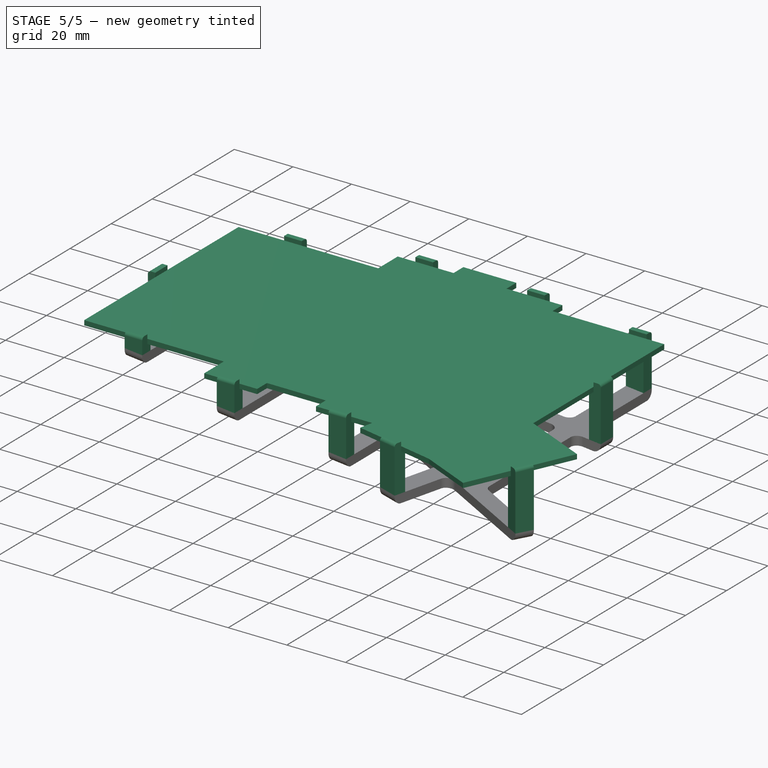
[diagram: stage 5 of 5 — iso view after this stage's code; geometry added in this stage tinted green]
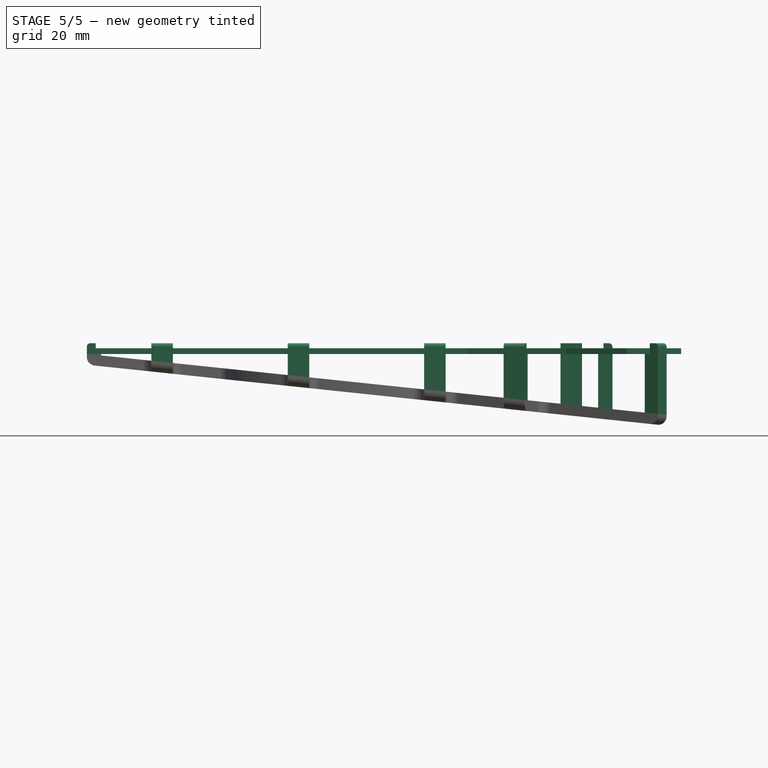
[diagram: stage 5 of 5 — front view after this stage's code; geometry added in this stage tinted green]
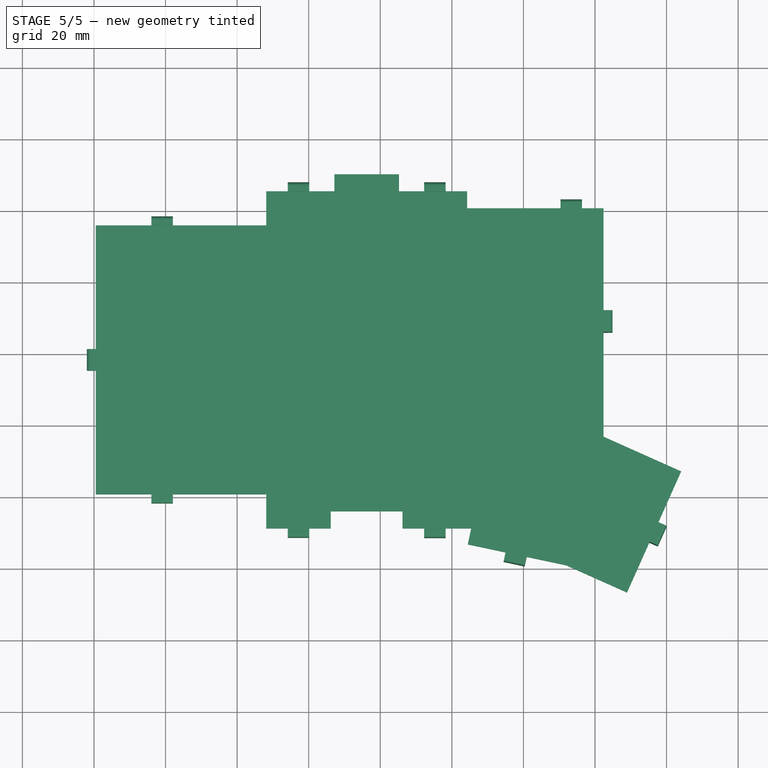
[diagram: stage 5 of 5 — top view after this stage's code; geometry added in this stage tinted green]
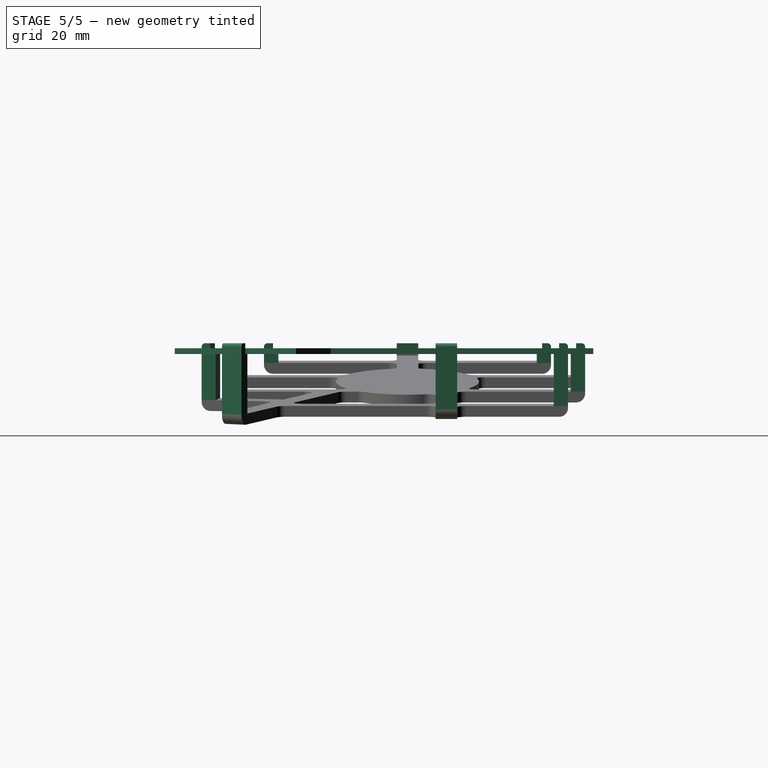
[diagram: stage 5 of 5 — right view after this stage's code; geometry added in this stage tinted green]
FEATURE [Spreadsheet::Sheet] Spreadsheet  label="skeleton"
  cells = A1=grid; B1(grid)=19.05; C1=hole; D1(hole)=14; E1=spacing; F1(spacing)==grid - hole; A2=edge; B2(edge)=4; A3=mod_units; B3(mod_units)=1.5; A5=pcb; D5=case; A6=thickness; B6(thickness)=1.6; D6=angle; E6(angle)=6; A7=margin; B7(margin)=0.5; D7=post_width; E7(post_width)=6; A8=platehole; B8(platehole)=2.3; D8=post_thickness; E8(post_thickness)=4; D9=post_minheight; E9(post_minheight)=3
FEATURE [Sketcher::SketchObject] Sketch  label="pcb_outline"
  FullyConstrained = true
  MapMode = 5
  Support = -> [XY_Plane]
  expr: Constraints[117] = Spreadsheet.margin
  expr: Constraints[62] = Spreadsheet.grid / 4
  expr: Constraints[55] = Spreadsheet.grid - 14.60669124913411
  expr: Constraints[46] = Spreadsheet.grid * 1.5
  expr: Constraints[35] = Spreadsheet.grid * 2.5
  expr: Constraints[123] = Spreadsheet.margin
  expr: Constraints[119] = Spreadsheet.margin
  expr: Constraints[37] = Spreadsheet.grid
  expr: Constraints[124] = Spreadsheet.margin
  expr: Constraints[131] = Spreadsheet.margin
  expr: Constraints[128] = Spreadsheet.margin
  expr: Constraints[36] = Spreadsheet.grid / 2
  expr: Constraints[34] = 4 * Spreadsheet.grid
  expr: Constraints[129] = Spreadsheet.margin
  expr: Constraints[113] = Spreadsheet.margin
  expr: Constraints[122] = Spreadsheet.margin
  expr: Constraints[51] = 180 - 12.08569093596732
  expr: Constraints[130] = Spreadsheet.margin
  expr: Constraints[115] = Spreadsheet.margin
  expr: Constraints[114] = Spreadsheet.margin
  expr: Constraints[121] = Spreadsheet.margin
  expr: Constraints[132] = Spreadsheet.margin
  expr: Constraints[136] = Spreadsheet.margin
  expr: Constraints[133] = Spreadsheet.margin
  expr: Constraints[118] = Spreadsheet.margin
  expr: Constraints[126] = Spreadsheet.margin
  expr: Constraints[116] = Spreadsheet.margin
  expr: Constraints[127] = Spreadsheet.margin
  expr: Constraints[134] = Spreadsheet.grid * 2
  expr: Constraints[120] = Spreadsheet.margin
  expr: Constraints[125] = Spreadsheet.margin
  expr: Constraints[135] = Spreadsheet.margin
  sketch-geometry (46):
    g0: LineSegment StartX=0 StartY=0 StartZ=0 EndX=0 EndY=76.2 EndZ=0
    g1: LineSegment StartX=0 StartY=76.2 StartZ=0 EndX=47.625 EndY=76.2 EndZ=0
    g2: LineSegment StartX=47.625 StartY=76.2 StartZ=0 EndX=47.625 EndY=85.725 EndZ=0
    g3: LineSegment StartX=47.625 StartY=85.725 StartZ=0 EndX=66.675 EndY=85.725 EndZ=0
    g4: LineSegment StartX=66.675 StartY=85.725 StartZ=0 EndX=66.675 EndY=90.4875 EndZ=0
    g5: LineSegment StartX=66.675 StartY=90.4875 StartZ=0 EndX=85.725 EndY=90.4875 EndZ=0
    g6: LineSegment StartX=85.725 StartY=85.725 StartZ=0 EndX=104.775 EndY=85.725 EndZ=0
    g7: LineSegment StartX=104.775 StartY=80.9625 StartZ=0 EndX=142.875 EndY=80.9625 EndZ=0
    g8: LineSegment StartX=142.875 StartY=80.9625 StartZ=0 EndX=142.875 EndY=16.9712 EndZ=0
    g9: LineSegment StartX=164.742 StartY=7.19623 StartZ=0 EndX=149.193 EndY=-27.5866 EndZ=0
    g10: LineSegment StartX=149.193 StartY=-27.5866 StartZ=0 EndX=131.802 EndY=-19.8123 EndZ=0
    g11: LineSegment StartX=131.802 StartY=-19.8123 StartZ=0 EndX=103.851 EndY=-13.8712 EndZ=0
    g12: LineSegment StartX=103.851 StartY=-13.8712 StartZ=0 EndX=104.775 EndY=-9.525 EndZ=0
    g13: LineSegment StartX=104.775 StartY=-9.525 StartZ=0 EndX=85.725 EndY=-9.525 EndZ=0
    g14: LineSegment StartX=85.725 StartY=-9.525 StartZ=0 EndX=85.725 EndY=-4.7625 EndZ=0
    g15: LineSegment StartX=85.725 StartY=-4.7625 StartZ=0 EndX=66.675 EndY=-4.7625 EndZ=0
    g16: LineSegment StartX=66.675 StartY=-4.7625 StartZ=0 EndX=66.675 EndY=-9.525 EndZ=0
    g17: LineSegment StartX=66.675 StartY=-9.525 StartZ=0 EndX=47.625 EndY=-9.525 EndZ=0
    g18: LineSegment StartX=47.625 StartY=-9.525 StartZ=0 EndX=47.625 EndY=0 EndZ=0
    g19: LineSegment StartX=47.625 StartY=0 StartZ=0 EndX=0 EndY=0 EndZ=0
    g20: LineSegment StartX=164.742 StartY=7.19623 StartZ=0 EndX=142.875 EndY=16.9712 EndZ=0
    g21: LineSegment StartX=85.725 StartY=90.4875 StartZ=0 EndX=85.725 EndY=85.725 EndZ=0
    g22: LineSegment StartX=104.775 StartY=85.725 StartZ=0 EndX=104.775 EndY=80.9625 EndZ=0
    g23: LineSegment StartX=48.125 StartY=75.7 StartZ=0 EndX=0.5 EndY=75.7 EndZ=0
    g24: LineSegment StartX=0.5 StartY=75.7 StartZ=0 EndX=0.5 EndY=0.5 EndZ=0
    g25: LineSegment StartX=0.5 StartY=0.5 StartZ=0 EndX=48.125 EndY=0.5 EndZ=0
    g26: LineSegment StartX=48.125 StartY=0.5 StartZ=0 EndX=48.125 EndY=-9.025 EndZ=0
    g27: LineSegment StartX=48.125 StartY=-9.025 StartZ=0 EndX=66.175 EndY=-9.025 EndZ=0
    g28: LineSegment StartX=66.175 StartY=-9.025 StartZ=0 EndX=66.175 EndY=-4.2625 EndZ=0
    g29: LineSegment StartX=66.175 StartY=-4.2625 StartZ=0 EndX=86.225 EndY=-4.2625 EndZ=0
    g30: LineSegment StartX=86.225 StartY=-4.2625 StartZ=0 EndX=86.225 EndY=-9.025 EndZ=0
    g31: LineSegment StartX=86.225 StartY=-9.025 StartZ=0 EndX=105.392 EndY=-9.025 EndZ=0
    g32: LineSegment StartX=105.392 StartY=-9.025 StartZ=0 EndX=104.444 EndY=-13.4861 EndZ=0
    g33: LineSegment StartX=104.444 StartY=-13.4861 StartZ=0 EndX=131.957 EndY=-19.3342 EndZ=0
    g34: LineSegment StartX=131.957 StartY=-19.3342 StartZ=0 EndX=148.941 EndY=-26.9261 EndZ=0
    g35: LineSegment StartX=148.941 StartY=-26.9261 StartZ=0 EndX=164.081 EndY=6.94381 EndZ=0
    g36: LineSegment StartX=164.081 StartY=6.94381 StartZ=0 EndX=142.375 EndY=16.647 EndZ=0
    g37: LineSegment StartX=142.375 StartY=16.647 StartZ=0 EndX=142.375 EndY=80.4625 EndZ=0
    g38: LineSegment StartX=142.375 StartY=80.4625 StartZ=0 EndX=104.275 EndY=80.4625 EndZ=0
    g39: LineSegment StartX=104.275 StartY=80.4625 StartZ=0 EndX=104.275 EndY=85.225 EndZ=0
    g40: LineSegment StartX=104.275 StartY=85.225 StartZ=0 EndX=85.225 EndY=85.225 EndZ=0
    g41: LineSegment StartX=85.225 StartY=85.225 StartZ=0 EndX=85.225 EndY=89.9875 EndZ=0
    g42: LineSegment StartX=85.225 StartY=89.9875 StartZ=0 EndX=67.175 EndY=89.9875 EndZ=0
    g43: LineSegment StartX=67.175 StartY=89.9875 StartZ=0 EndX=67.175 EndY=85.225 EndZ=0
    g44: LineSegment StartX=67.175 StartY=85.225 StartZ=0 EndX=48.125 EndY=85.225 EndZ=0
    g45: LineSegment StartX=48.125 StartY=85.225 StartZ=0 EndX=48.125 EndY=75.7 EndZ=0
  constraints (137):
    c: Coincident(g0,g-1)
    c: PointOnObject(g0,g-2)
    c: Coincident(g0,g1)
    c: Horizontal(g1)
    c: Coincident(g1,g2)
    c: Vertical(g2)
    c: Coincident(g2,g3)
    c: Horizontal(g3)
    c: Coincident(g3,g4)
    c: Vertical(g4)
    c: Coincident(g4,g5)
    c: Horizontal(g5)
    c: Horizontal(g6)
    c: Horizontal(g7)
    c: Coincident(g7,g8)
    c: Vertical(g8)
    c: Coincident(g9,g10)
    c: Coincident(g10,g11)
    c: Coincident(g11,g12)
    c: Coincident(g12,g13)
    c: Horizontal(g13)
    c: Coincident(g13,g14)
    c: Vertical(g14)
    c: Coincident(g14,g15)
    c: Horizontal(g15)
    c: Coincident(g15,g16)
    c: Vertical(g16)
    c: Coincident(g16,g17)
    c: Horizontal(g17)
    c: Coincident(g17,g18)
    c: Vertical(g18)
    c: Coincident(g18,g19)
    c: Coincident(g19,g-1)
    c: Horizontal(g19)
    c: Distance(g0) = 76.2
    c: Distance(g1) = 47.625
    c: Distance(g2) = 9.525
    c: Distance(g3) = 19.05
    c: Equal(g14,g16)
    c: Equal(g3,g5)
    c: Equal(g5,g6)
    c: Equal(g6,g10)
    c: Equal(g10,g13)
    c: Equal(g13,g15)
    c: Equal(g15,g17)
    c: Equal(g9,g7)
    c: Distance(g11) = 28.575
    c: Perpendicular(g10,g9)
    c: Equal(g18,g2)
    c: Angle(g13,g12) = 1.36136
    c: Perpendicular(g12,g11)
    c: Angle(g11,g10) = 2.93066
    c: Coincident(g20,g9)
    c: Coincident(g20,g8)
    c: Perpendicular(g9,g20)
    c: Distance(g12) = 4.44331
    c: Coincident(g21,g5)
    c: Coincident(g21,g6)
    c: Vertical(g21)
    c: Coincident(g22,g6)
    c: Coincident(g22,g7)
    c: Vertical(g22)
    c: Distance(g4) = 4.7625
    c: Equal(g4,g21)
    c: Equal(g22,g4)
    c: Equal(g14,g22)
    c: Equal(g1,g19)
    c: Coincident(g23,g24)
    c: Coincident(g24,g25)
    c: Coincident(g25,g26)
    c: Coincident(g26,g27)
    c: Coincident(g27,g28)
    c: Coincident(g28,g29)
    c: Coincident(g29,g30)
    c: Coincident(g30,g31)
    c: Coincident(g31,g32)
    c: Coincident(g32,g33)
    c: Coincident(g33,g34)
    c: Coincident(g34,g35)
    c: Coincident(g35,g36)
    c: Coincident(g36,g37)
    c: Vertical(g37)
    c: Coincident(g37,g38)
    c: Coincident(g38,g39)
    c: Coincident(g39,g40)
    c: Coincident(g40,g41)
    c: Coincident(g41,g42)
    c: Coincident(g42,g43)
    c: Coincident(g43,g44)
    c: Coincident(g44,g45)
    c: Coincident(g45,g23)
    c: Parallel(g24,g0)
    c: Parallel(g0,g45)
    c: Parallel(g45,g43)
    c: Parallel(g43,g41)
    c: Parallel(g41,g26)
    c: Parallel(g26,g28)
    c: Parallel(g28,g30)
    c: Parallel(g37,g39)
    c: Parallel(g1,g23)
    c: Parallel(g23,g44)
    c: Parallel(g44,g42)
    c: Parallel(g42,g40)
    c: Parallel(g40,g38)
    c: Parallel(g38,g31)
    c: Parallel(g31,g29)
    c: Parallel(g29,g27)
    c: Parallel(g27,g25)
    c: Parallel(g12,g32)
    c: Parallel(g33,g11)
    c: Parallel(g34,g10)
    c: Parallel(g35,g9)
    c: Parallel(g36,g20)
    c: Distance(g23,g0) = 0.5
    c: Distance(g24,g19) = 0.5
    c: Distance(g26,g17) = 0.5
    c: Distance(g27,g16) = 0.5
    c: Distance(g28,g15) = 0.5
    c: Distance(g29,g14) = 0.5
    c: Distance(g30,g13) = 0.5
    c: Distance(g31,g12) = 0.5
    c: Distance(g32,g11) = 0.5
    c: Distance(g33,g10) = 0.5
    c: Distance(g34,g9) = 0.5
    c: Distance(g37,g7) = 0.5
    c: Distance(g39,g6) = 0.5
    c: Distance(g40,g21) = 0.5
    c: Distance(g41,g5) = 0.5
    c: Distance(g44,g3) = 0.5
    c: Distance(g23,g1) = 0.5
    c: DistanceX(g18,g25) = 0.5
    c: DistanceX(g1,g23) = 0.5
    c: DistanceX(g3,g43) = 0.5
    c: DistanceX(g38,g7) = 0.5
    c: DistanceX(g7,g7) = 38.1
    c: Distance(g9,g36) = 0.5
    c: DistanceX(g37,g7) = 0.5
FEATURE [PartDesign::Pad] Pad
  Direction = (1,1,1)
  Length = 1.6
  Length2 = 100
  Profile = -> Sketch
  Type = 0
  expr: Length = Spreadsheet.thickness
FEATURE [Sketcher::SketchObject] Sketch015
  ExternalGeometry = -> [Fillet]
  FullyConstrained = true
  MapMode = 5
  Placement = pos=(-0.335438,0,-3.19148) rot=(0.99863,0,-0.052336;3.14159rad)
  Support = -> [Fillet]
  sketch-geometry (22):
    g0: ArcOfCircle CenterX=72.1683 CenterY=-33.35 CenterZ=0 NormalX=0 NormalY=0 NormalZ=1 AngleXU=0 Radius=8 StartAngle=4.29014 EndAngle=4.52377
    g1: LineSegment StartX=72.1683 StartY=-33.35 StartZ=0 EndX=72.1683 EndY=-49.35 EndZ=0
    g2: LineSegment StartX=72.1683 StartY=-33.35 StartZ=0 EndX=62.9911 EndY=-46.4564 EndZ=0
    g3: LineSegment StartX=72.1683 StartY=-33.35 StartZ=0 EndX=81.3455 EndY=-46.4564 EndZ=0
    g4: ArcOfCircle CenterX=81.3455 CenterY=-46.4564 CenterZ=0 NormalX=0 NormalY=0 NormalZ=1 AngleXU=0 Radius=1.5 StartAngle=3.75246 EndAngle=6.89405
    g5: ArcOfCircle CenterX=72.1683 CenterY=-49.35 CenterZ=0 NormalX=0 NormalY=0 NormalZ=1 AngleXU=0 Radius=1.5 StartAngle=3.14159 EndAngle=6.28319
    g6: ArcOfCircle CenterX=62.9911 CenterY=-46.4564 CenterZ=0 NormalX=0 NormalY=0 NormalZ=1 AngleXU=0 Radius=1.5 StartAngle=2.53073 EndAngle=5.67232
    g7: LineSegment StartX=82.5742 StartY=-45.5961 StartZ=0 EndX=77.9042 EndY=-38.9266 EndZ=0
    g8: LineSegment StartX=80.1168 StartY=-47.3168 StartZ=0 EndX=75.4468 EndY=-40.6474 EndZ=0
    g9: LineSegment StartX=73.6683 StartY=-49.35 StartZ=0 EndX=73.6683 EndY=-41.2081 EndZ=0
    g10: LineSegment StartX=70.6683 StartY=-49.35 StartZ=0 EndX=70.6683 EndY=-41.2081 EndZ=0
    g11: LineSegment StartX=64.2198 StartY=-47.3168 StartZ=0 EndX=68.8898 EndY=-40.6474 EndZ=0
    g12: LineSegment StartX=61.7623 StartY=-45.5961 StartZ=0 EndX=66.4323 EndY=-38.9266 EndZ=0
    g13: LineSegment StartX=81.3455 StartY=-46.4564 StartZ=0 EndX=82.5742 EndY=-45.5961 EndZ=0
    g14: LineSegment StartX=72.1683 StartY=-49.35 StartZ=0 EndX=73.6683 EndY=-49.35 EndZ=0
    g15: LineSegment StartX=62.9911 StartY=-46.4564 StartZ=0 EndX=64.2198 EndY=-47.3168 EndZ=0
    g16: LineSegment StartX=72.1683 StartY=-33.35 StartZ=0 EndX=72.1683 EndY=-25.35 EndZ=0
    g17: LineSegment StartX=72.1683 StartY=-25.35 StartZ=0 EndX=72.1683 EndY=-18.1 EndZ=0
    g18: LineSegment StartX=72.1683 StartY=-49.35 StartZ=0 EndX=72.1683 EndY=-50.85 EndZ=0
    g19: LineSegment StartX=72.1683 StartY=-50.85 StartZ=0 EndX=72.1683 EndY=-58.1 EndZ=0
    g20: ArcOfCircle CenterX=72.1683 CenterY=-33.35 CenterZ=0 NormalX=0 NormalY=0 NormalZ=1 AngleXU=0 Radius=8 StartAngle=4.90101 EndAngle=5.13464
    g21: ArcOfCircle CenterX=72.1683 CenterY=-33.35 CenterZ=0 NormalX=0 NormalY=0 NormalZ=1 AngleXU=0 Radius=8 StartAngle=5.51187 EndAngle=10.1961
  constraints (66):
    c: Vertical(g1)
    c: Equal(g1,g3)
    c: Equal(g3,g2)
    c: Angle(g2,g1) = 0.610865
    c: Angle(g1,g3) = 0.610865
    c: Coincident(g3,g2)
    c: Coincident(g3,g0)
    c: Coincident(g3,g1)
    c: Coincident(g4,g3)
    c: Coincident(g5,g1)
    c: Coincident(g6,g2)
    c: Equal(g6,g5)
    c: Equal(g5,g4)
    c: PointOnObject(g7,g0)
    c: PointOnObject(g8,g0)
    c: PointOnObject(g9,g0)
    c: Parallel(g12,g2)
    c: Parallel(g2,g11)
    c: Parallel(g10,g1)
    c: Parallel(g1,g9)
    c: Parallel(g8,g3)
    c: Parallel(g3,g7)
    c: Distance(g3) = 16
    c: Coincident(g13,g4)
    c: Coincident(g13,g7)
    c: Coincident(g14,g5)
    c: Coincident(g14,g9)
    c: Horizontal(g14)
    c: Coincident(g15,g6)
    c: Coincident(g15,g11)
    c: Perpendicular(g11,g15)
    c: Perpendicular(g7,g13)
    c: Equal(g8,g7)
    c: Equal(g12,g11)
    c: Coincident(g16,g0)
    c: PointOnObject(g16,g0)
    c: Vertical(g16)
    c: Coincident(g17,g16)
    c: Vertical(g17)
    c: Coincident(g18,g5)
    c: PointOnObject(g18,g5)
    c: Coincident(g19,g18)
    c: Vertical(g19)
    c: Equal(g17,g19)
    c: Coincident(g4,g7)
    c: Coincident(g4,g8)
    c: Coincident(g5,g9)
    c: Tangent(g5,g10) = 1.5708
    c: Coincident(g6,g11)
    c: Coincident(g6,g12)
    c: Coincident(g0,g11)
    c: Coincident(g21,g12)
    c: Equal(g0,g20)
    c: Coincident(g0,g10)
    c: Coincident(g0,g20)
    c: PointOnObject(g20,g9)
    c: Equal(g20,g21)
    c: PointOnObject(g20,g8)
    c: Coincident(g20,g21)
    c: PointOnObject(g21,g7)
    c: Vertical(g18)
    c: Radius(g21) = 8
    c: Radius(g6) = 1.5
    c: PointOnObject(g17,g-3)
    c: PointOnObject(g19,g-3)
    c: PointOnObject(g-3,g1)
FEATURE [Part::Fillet] Fillet001  label="posts_fillet"
  Base = -> Fusion
  Edges = 11 edges r=1: [Edge10,Edge22,Edge34,Edge46,Edge55,Edge67,Edge76,Edge88,Edge100,Edge112,Edge132]
FEATURE [Sketcher::SketchObject] Sketch017  label="pcb_outline001"
  FullyConstrained = true
  MapMode = 5
  Support = -> [XY_Plane014]
  expr: Constraints[35] = Spreadsheet.grid * 2.5
  expr: Constraints[46] = Spreadsheet.grid * 1.5
  expr: Constraints[55] = Spreadsheet.grid - 14.60669124913411
  expr: Constraints[62] = Spreadsheet.grid / 4
  expr: Constraints[119] = Spreadsheet.margin
  expr: Constraints[113] = Spreadsheet.margin
  expr: Constraints[129] = Spreadsheet.margin
  expr: Constraints[122] = Spreadsheet.margin
  expr: Constraints[51] = 180 - 12.08569093596732
  expr: Constraints[36] = Spreadsheet.grid / 2
  expr: Constraints[34] = 4 * Spreadsheet.grid
  expr: Constraints[128] = Spreadsheet.margin
  expr: Constraints[123] = Spreadsheet.margin
  expr: Constraints[131] = Spreadsheet.grid * 2
  expr: Constraints[130] = Spreadsheet.margin
  expr: Constraints[117] = Spreadsheet.margin
  expr: Constraints[37] = Spreadsheet.grid
  expr: Constraints[124] = Spreadsheet.margin
  expr: Constraints[125] = Spreadsheet.margin
  expr: Constraints[135] = Spreadsheet.margin
  expr: Constraints[126] = Spreadsheet.margin
  expr: Constraints[118] = Spreadsheet.margin
  expr: Constraints[114] = Spreadsheet.margin
  expr: Constraints[115] = Spreadsheet.margin
  expr: Constraints[121] = Spreadsheet.margin
  expr: Constraints[132] = Spreadsheet.margin
  expr: Constraints[136] = Spreadsheet.margin
  expr: Constraints[133] = Spreadsheet.margin
  expr: Constraints[120] = Spreadsheet.margin
  expr: Constraints[134] = Spreadsheet.margin
  expr: Constraints[127] = Spreadsheet.margin
  expr: Constraints[116] = Spreadsheet.margin
  sketch-geometry (46):
    g0: LineSegment StartX=0 StartY=0 StartZ=0 EndX=0 EndY=76.2 EndZ=0
    g1: LineSegment StartX=0 StartY=76.2 StartZ=0 EndX=47.625 EndY=76.2 EndZ=0
    g2: LineSegment StartX=47.625 StartY=76.2 StartZ=0 EndX=47.625 EndY=85.725 EndZ=0
    g3: LineSegment StartX=47.625 StartY=85.725 StartZ=0 EndX=66.675 EndY=85.725 EndZ=0
    g4: LineSegment StartX=66.675 StartY=85.725 StartZ=0 EndX=66.675 EndY=90.4875 EndZ=0
    g5: LineSegment StartX=66.675 StartY=90.4875 StartZ=0 EndX=85.725 EndY=90.4875 EndZ=0
    g6: LineSegment StartX=85.725 StartY=85.725 StartZ=0 EndX=104.775 EndY=85.725 EndZ=0
    g7: LineSegment StartX=104.775 StartY=80.9625 StartZ=0 EndX=142.875 EndY=80.9625 EndZ=0
    g8: LineSegment StartX=142.875 StartY=80.9625 StartZ=0 EndX=142.875 EndY=16.9712 EndZ=0
    g9: LineSegment StartX=164.742 StartY=7.19623 StartZ=0 EndX=149.193 EndY=-27.5866 EndZ=0
    g10: LineSegment StartX=149.193 StartY=-27.5866 StartZ=0 EndX=131.802 EndY=-19.8123 EndZ=0
    g11: LineSegment StartX=131.802 StartY=-19.8123 StartZ=0 EndX=103.851 EndY=-13.8712 EndZ=0
    g12: LineSegment StartX=103.851 StartY=-13.8712 StartZ=0 EndX=104.775 EndY=-9.525 EndZ=0
    g13: LineSegment StartX=104.775 StartY=-9.525 StartZ=0 EndX=85.725 EndY=-9.525 EndZ=0
    g14: LineSegment StartX=85.725 StartY=-9.525 StartZ=0 EndX=85.725 EndY=-4.7625 EndZ=0
    g15: LineSegment StartX=85.725 StartY=-4.7625 StartZ=0 EndX=66.675 EndY=-4.7625 EndZ=0
    g16: LineSegment StartX=66.675 StartY=-4.7625 StartZ=0 EndX=66.675 EndY=-9.525 EndZ=0
    g17: LineSegment StartX=66.675 StartY=-9.525 StartZ=0 EndX=47.625 EndY=-9.525 EndZ=0
    g18: LineSegment StartX=47.625 StartY=-9.525 StartZ=0 EndX=47.625 EndY=0 EndZ=0
    g19: LineSegment StartX=47.625 StartY=0 StartZ=0 EndX=0 EndY=0 EndZ=0
    g20: LineSegment StartX=164.742 StartY=7.19623 StartZ=0 EndX=142.875 EndY=16.9712 EndZ=0
    g21: LineSegment StartX=85.725 StartY=90.4875 StartZ=0 EndX=85.725 EndY=85.725 EndZ=0
    g22: LineSegment StartX=104.775 StartY=85.725 StartZ=0 EndX=104.775 EndY=80.9625 EndZ=0
    g23: LineSegment StartX=48.125 StartY=75.7 StartZ=0 EndX=0.5 EndY=75.7 EndZ=0
    g24: LineSegment StartX=0.5 StartY=75.7 StartZ=0 EndX=0.5 EndY=0.5 EndZ=0
    g25: LineSegment StartX=0.5 StartY=0.5 StartZ=0 EndX=48.125 EndY=0.5 EndZ=0
    g26: LineSegment StartX=48.125 StartY=0.5 StartZ=0 EndX=48.125 EndY=-9.025 EndZ=0
    g27: LineSegment StartX=48.125 StartY=-9.025 StartZ=0 EndX=66.175 EndY=-9.025 EndZ=0
    g28: LineSegment StartX=66.175 StartY=-9.025 StartZ=0 EndX=66.175 EndY=-4.2625 EndZ=0
    g29: LineSegment StartX=66.175 StartY=-4.2625 StartZ=0 EndX=86.225 EndY=-4.2625 EndZ=0
    g30: LineSegment StartX=86.225 StartY=-4.2625 StartZ=0 EndX=86.225 EndY=-9.025 EndZ=0
    g31: LineSegment StartX=86.225 StartY=-9.025 StartZ=0 EndX=105.392 EndY=-9.025 EndZ=0
    g32: LineSegment StartX=105.392 StartY=-9.025 StartZ=0 EndX=104.444 EndY=-13.4861 EndZ=0
    g33: LineSegment StartX=104.444 StartY=-13.4861 StartZ=0 EndX=131.957 EndY=-19.3342 EndZ=0
    g34: LineSegment StartX=131.957 StartY=-19.3342 StartZ=0 EndX=148.941 EndY=-26.9261 EndZ=0
    g35: LineSegment StartX=148.941 StartY=-26.9261 StartZ=0 EndX=164.081 EndY=6.94381 EndZ=0
    g36: LineSegment StartX=164.081 StartY=6.94381 StartZ=0 EndX=142.375 EndY=16.647 EndZ=0
    g37: LineSegment StartX=142.375 StartY=16.647 StartZ=0 EndX=142.375 EndY=80.4625 EndZ=0
    g38: LineSegment StartX=142.375 StartY=80.4625 StartZ=0 EndX=104.275 EndY=80.4625 EndZ=0
    g39: LineSegment StartX=104.275 StartY=80.4625 StartZ=0 EndX=104.275 EndY=85.225 EndZ=0
    g40: LineSegment StartX=104.275 StartY=85.225 StartZ=0 EndX=85.225 EndY=85.225 EndZ=0
    g41: LineSegment StartX=85.225 StartY=85.225 StartZ=0 EndX=85.225 EndY=89.9875 EndZ=0
    g42: LineSegment StartX=85.225 StartY=89.9875 StartZ=0 EndX=67.175 EndY=89.9875 EndZ=0
    g43: LineSegment StartX=67.175 StartY=89.9875 StartZ=0 EndX=67.175 EndY=85.225 EndZ=0
    g44: LineSegment StartX=67.175 StartY=85.225 StartZ=0 EndX=48.125 EndY=85.225 EndZ=0
    g45: LineSegment StartX=48.125 StartY=85.225 StartZ=0 EndX=48.125 EndY=75.7 EndZ=0
  constraints (137):
    c: Coincident(g0,g-1)
    c: PointOnObject(g0,g-2)
    c: Coincident(g0,g1)
    c: Horizontal(g1)
    c: Coincident(g1,g2)
    c: Vertical(g2)
    c: Coincident(g2,g3)
    c: Horizontal(g3)
    c: Coincident(g3,g4)
    c: Vertical(g4)
    c: Coincident(g4,g5)
    c: Horizontal(g5)
    c: Horizontal(g6)
    c: Horizontal(g7)
    c: Coincident(g7,g8)
    c: Vertical(g8)
    c: Coincident(g9,g10)
    c: Coincident(g10,g11)
    c: Coincident(g11,g12)
    c: Coincident(g12,g13)
    c: Horizontal(g13)
    c: Coincident(g13,g14)
    c: Vertical(g14)
    c: Coincident(g14,g15)
    c: Horizontal(g15)
    c: Coincident(g15,g16)
    c: Vertical(g16)
    c: Coincident(g16,g17)
    c: Horizontal(g17)
    c: Coincident(g17,g18)
    c: Vertical(g18)
    c: Coincident(g18,g19)
    c: Coincident(g19,g-1)
    c: Horizontal(g19)
    c: Distance(g0) = 76.2
    c: Distance(g1) = 47.625
    c: Distance(g2) = 9.525
    c: Distance(g3) = 19.05
    c: Equal(g14,g16)
    c: Equal(g3,g5)
    c: Equal(g5,g6)
    c: Equal(g6,g10)
    c: Equal(g10,g13)
    c: Equal(g13,g15)
    c: Equal(g15,g17)
    c: Equal(g9,g7)
    c: Distance(g11) = 28.575
    c: Perpendicular(g10,g9)
    c: Equal(g18,g2)
    c: Angle(g13,g12) = 1.36136
    c: Perpendicular(g12,g11)
    c: Angle(g11,g10) = 2.93066
    c: Coincident(g20,g9)
    c: Coincident(g20,g8)
    c: Perpendicular(g9,g20)
    c: Distance(g12) = 4.44331
    c: Coincident(g21,g5)
    c: Coincident(g21,g6)
    c: Vertical(g21)
    c: Coincident(g22,g6)
    c: Coincident(g22,g7)
    c: Vertical(g22)
    c: Distance(g4) = 4.7625
    c: Equal(g4,g21)
    c: Equal(g22,g4)
    c: Equal(g14,g22)
    c: Equal(g1,g19)
    c: Coincident(g23,g24)
    c: Coincident(g24,g25)
    c: Coincident(g25,g26)
    c: Coincident(g26,g27)
    c: Coincident(g27,g28)
    c: Coincident(g28,g29)
    c: Coincident(g29,g30)
    c: Coincident(g30,g31)
    c: Coincident(g31,g32)
    c: Coincident(g32,g33)
    c: Coincident(g33,g34)
    c: Coincident(g34,g35)
    c: Coincident(g35,g36)
    c: Coincident(g36,g37)
    c: Vertical(g37)
    c: Coincident(g37,g38)
    c: Coincident(g38,g39)
    c: Coincident(g39,g40)
    c: Coincident(g40,g41)
    c: Coincident(g41,g42)
    c: Coincident(g42,g43)
    c: Coincident(g43,g44)
    c: Coincident(g44,g45)
    c: Coincident(g45,g23)
    c: Parallel(g24,g0)
    c: Parallel(g0,g45)
    c: Parallel(g45,g43)
    c: Parallel(g43,g41)
    c: Parallel(g41,g26)
    c: Parallel(g26,g28)
    c: Parallel(g28,g30)
    c: Parallel(g37,g39)
    c: Parallel(g1,g23)
    c: Parallel(g23,g44)
    c: Parallel(g44,g42)
    c: Parallel(g42,g40)
    c: Parallel(g40,g38)
    c: Parallel(g38,g31)
    c: Parallel(g31,g29)
    c: Parallel(g29,g27)
    c: Parallel(g27,g25)
    c: Parallel(g12,g32)
    c: Parallel(g33,g11)
    c: Parallel(g34,g10)
    c: Parallel(g35,g9)
    c: Parallel(g36,g20)
    c: Distance(g23,g0) = 0.5
    c: Distance(g24,g19) = 0.5
    c: Distance(g26,g17) = 0.5
    c: Distance(g27,g16) = 0.5
    c: Distance(g28,g15) = 0.5
    c: Distance(g29,g14) = 0.5
    c: Distance(g30,g13) = 0.5
    c: Distance(g31,g12) = 0.5
    c: Distance(g32,g11) = 0.5
    c: Distance(g33,g10) = 0.5
    c: Distance(g34,g9) = 0.5
    c: Distance(g37,g7) = 0.5
    c: Distance(g38,g22) = 0.5
    c: Distance(g39,g6) = 0.5
    c: Distance(g40,g21) = 0.5
    c: Distance(g41,g5) = 0.5
    c: Distance(g44,g3) = 0.5
    c: Distance(g23,g1) = 0.5
    c: DistanceX(g7,g7) = 38.1
    c: Distance(g9,g36) = 0.5
    c: DistanceX(g37,g7) = 0.5
    c: DistanceX(g3,g43) = 0.5
    c: DistanceX(g1,g23) = 0.5
    c: DistanceX(g18,g25) = 0.5
FEATURE [PartDesign::Pad] Pad015
  Direction = (1,1,1)
  Length = 6
  Length2 = 100
  Profile = -> Sketch017
  Type = 0
  expr: Length = 6
FEATURE [PartDesign::Body] Body014  label="pcb_cut"
  Group = -> [Sketch017,Pad015]
  Origin = -> Origin014
  Tip = -> Pad015
FEATURE [Part::Cut] Cut
  Base = -> Fillet001
  Tool = -> Body014
FEATURE [PartDesign::Pocket] Pocket
  BaseFeature = -> Fillet
  Length = 0.35
  Length2 = 100
  Profile = -> Sketch015
  Type = 0
FEATURE [Sketcher::SketchObject] Sketch018
  ExternalGeometry = -> [Pocket]
  FullyConstrained = false
  MapMode = 5
  Placement = pos=(-0.298853,1e-16,-2.84339) rot=(0.99863,0,-0.052336;3.14159rad)
  Support = -> [Pocket]
  sketch-geometry (1):
    g0: Circle CenterX=75.4923 CenterY=-36.4287 CenterZ=0 NormalX=0 NormalY=0 NormalZ=1 AngleXU=0 Radius=2
  constraints (1):
    c: Radius(g0) = 2
FEATURE [PartDesign::Pad] Pad016
  BaseFeature = -> Pocket
  Direction = (1,1,1)
  Length = 0.35
  Length2 = 100
  Profile = -> Sketch018
  Type = 0
FEATURE [PartDesign::Body] Body013  label="spine"
  Group = -> [ShapeBinder001,Sketch014,Pad013,Fillet,Sketch015,Pocket,Sketch018,Pad016]
  Origin = -> Origin013
  Tip = -> Pad016
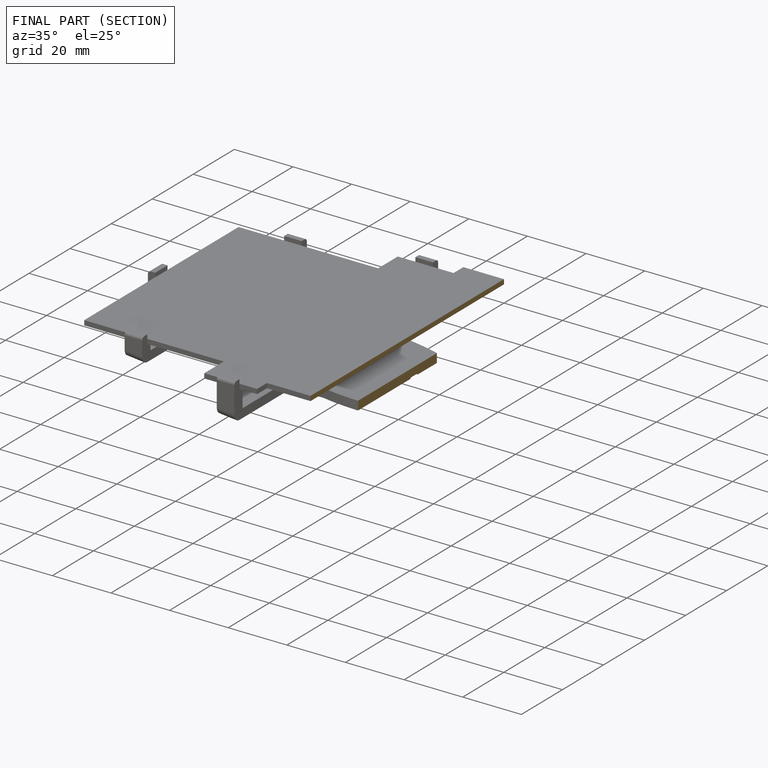
[diagram: finished part — half-section view (interior)]
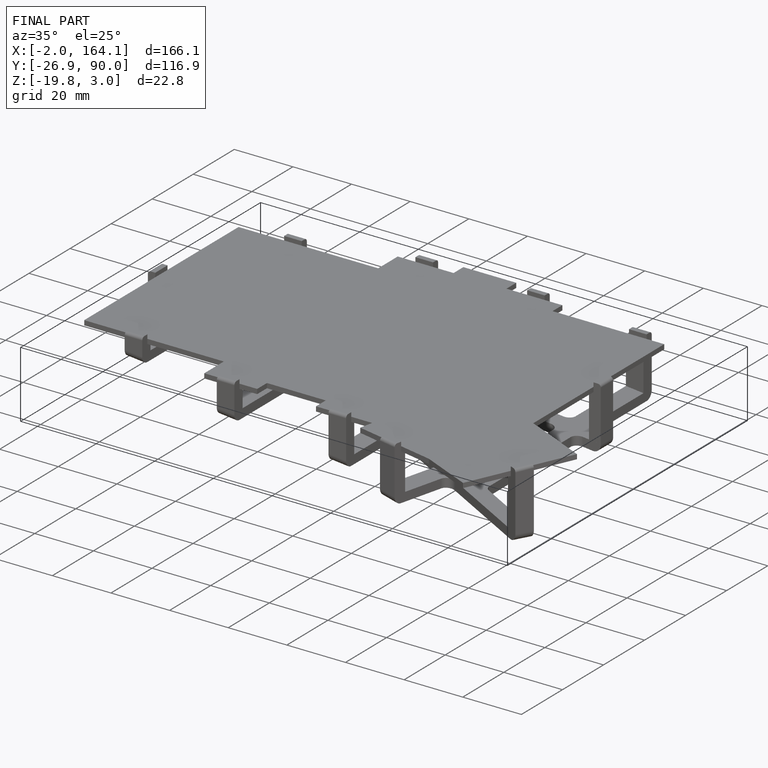
[diagram: finished part — iso view with bounding-box wireframe]
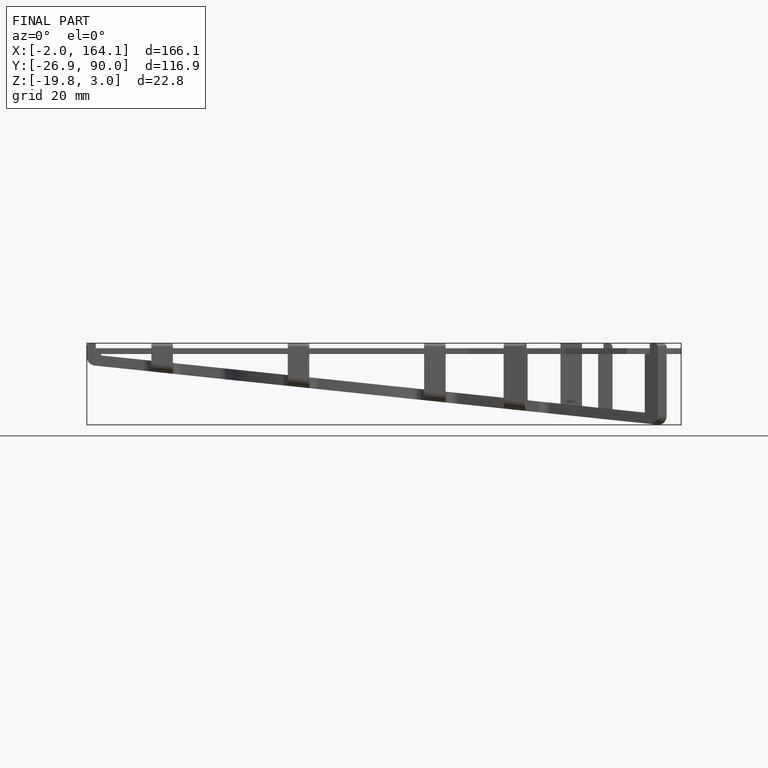
[diagram: finished part — front view with bounding-box wireframe]
